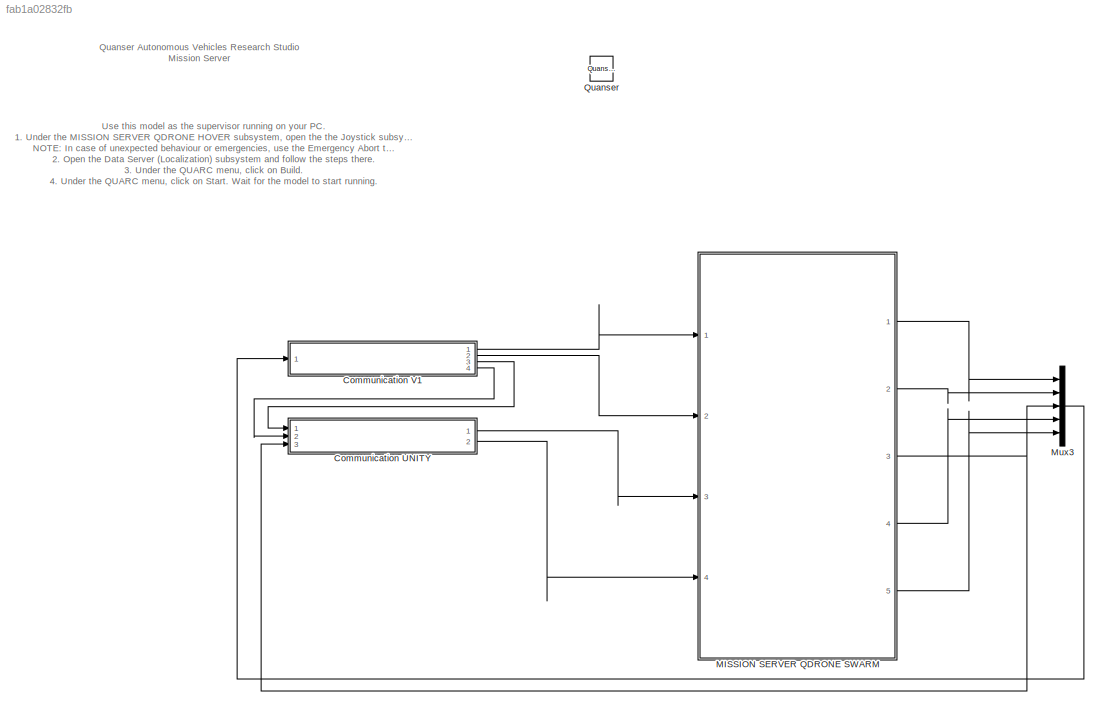
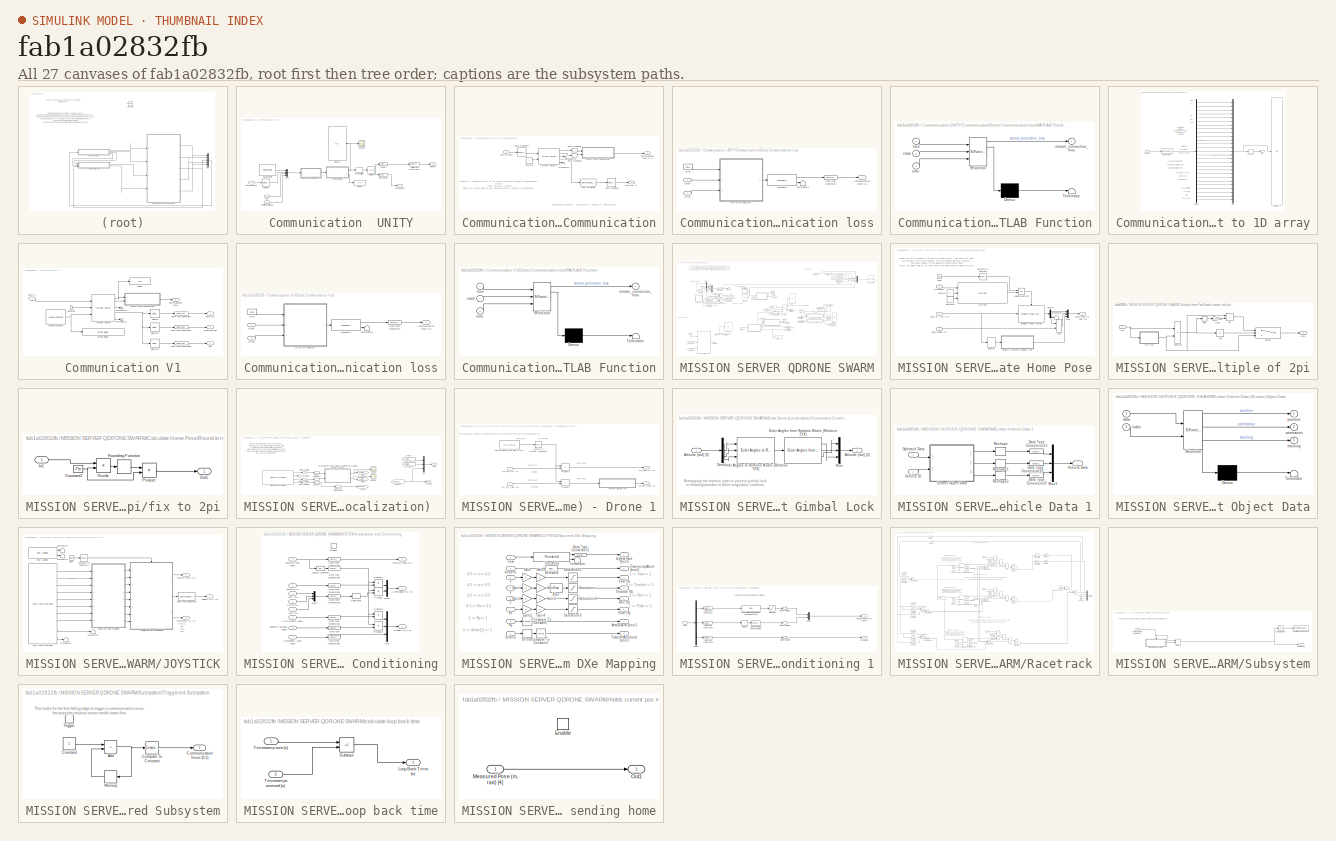
[diagram: thumbnail index - all 27 canvases of the model, root first then tree order]
MODEL slx_fab1a02832fb
KIND model
CONFIG AbsTol = auto
CONFIG EnableMultiTasking = on
CONFIG FixedStep = 0.001
CONFIG MaxStep = auto
CONFIG MinStep = auto
CONFIG RelTol = 1e-3
CONFIG SampleTimeConstraint = Unconstrained
CONFIG SolverName = ode2
CONFIG StartTime = 0.0
CONFIG StopTime = inf
BLOCK [SubSystem] Communication  UNITY
  Ports = [3, 2]
  RequestExecContextInheritance = off
BLOCK [SubSystem] Communication  UNITY/Communication
  Ports = [1, 2]
  RequestExecContextInheritance = off
BLOCK [DataTypeConversion] Communication  UNITY/Communication/Cast To Double
  OutDataTypeStr = double
  RndMeth = Floor
  SaturateOnIntegerOverflow = off
BLOCK [Outport] Communication  UNITY/Communication/Communication Issue (0,1)
  Port = 2
  VectorParamsAs1DForOutWhenUnconnected = off
BLOCK [Constant] Communication  UNITY/Communication/Constant
BLOCK [Outport] Communication  UNITY/Communication/Data Out [7]
  VectorParamsAs1DForOutWhenUnconnected = off
BLOCK [Inport] Communication  UNITY/Communication/Data to Send 
BLOCK [SubSystem] Communication  UNITY/Communication/Detect Communication loss
  Ports = [2, 1]
  RequestExecContextInheritance = off
BLOCK [Outport] Communication  UNITY/Communication/Detect Communication loss/Communication Issue (0,1)
  VectorParamsAs1DForOutWhenUnconnected = off
BLOCK [DataTypeConversion] Communication  UNITY/Communication/Detect Communication loss/Data Type Conversion
  RndMeth = Floor
  SaturateOnIntegerOverflow = off
BLOCK [Inport] Communication  UNITY/Communication/Detect Communication loss/Error
  NameLocation = top
  Port = 2
BLOCK [SubSystem] Communication  UNITY/Communication/Detect Communication loss/MATLAB Function
  ErrorFcn = Stateflow.Translate.translate
  PermitHierarchicalResolution = ExplicitOnly
  Ports = [3, 1]
  RequestExecContextInheritance = off
  SFBlockType = MATLAB Function
  TreatAsAtomicUnit = on
BLOCK [Demux] Communication  UNITY/Communication/Detect Communication loss/MATLAB Function/ Demux 
  Outputs = 1
  Ports = [1, 1]
BLOCK [S-Function] Communication  UNITY/Communication/Detect Communication loss/MATLAB Function/ SFunction 
  EnableBusSupport = on
  FunctionName = sf_sfun
  PortCounts = [3 2]
  Ports = [3, 2]
  SFcnIsStateOwnerBlock = off
  SFunctionDeploymentMode = off
  Tag = Stateflow S-Function 12
BLOCK [Terminator] Communication  UNITY/Communication/Detect Communication loss/MATLAB Function/ Terminator 
BLOCK [Inport] Communication  UNITY/Communication/Detect Communication loss/MATLAB Function/error
  Port = 3
BLOCK [Inport] Communication  UNITY/Communication/Detect Communication loss/MATLAB Function/state
  Port = 2
BLOCK [Outport] Communication  UNITY/Communication/Detect Communication loss/MATLAB Function/stream_connection_loss
  VectorParamsAs1DForOutWhenUnconnected = off
BLOCK [Inport] Communication  UNITY/Communication/Detect Communication loss/MATLAB Function/time
BLOCK [Inport] Communication  UNITY/Communication/Detect Communication loss/State
  NameLocation = top
BLOCK [Terminator] Communication  UNITY/Communication/Detect Communication loss/Terminator2
BLOCK [Reference] Communication  UNITY/Communication/Detect Communication loss/Threshold  REF=quarc_library/Discontinuities/Threshold
  Ports = [1, 2]
  SourceBlock = quarc_library/Discontinuities/Threshold
  SourceProductName = QUARC Targets
  SourceType = Threshold
BLOCK [Reference] Communication  UNITY/Communication/Detect Communication loss/Time  REF=quarc_library/Sources/Time/Time
  NameLocation = top
  Ports = [0, 1]
  SourceBlock = quarc_library/Sources/Time/Time
  SourceProductName = QUARC Targets
  SourceType = Time
BLOCK [RateTransition] Communication  UNITY/Communication/Rate Transition
BLOCK [RateTransition] Communication  UNITY/Communication/Rate Transition1
BLOCK [RateTransition] Communication  UNITY/Communication/Rate Transition2
BLOCK [RateTransition] Communication  UNITY/Communication/Rate Transition3
BLOCK [Reference] Communication  UNITY/Communication/Stream Server1  REF=quarc_library/Communications/Basic/Stream Server
  AttributesFormatString = "tcpip://localhost:18000?nagle='off'"
  Ports = [2, 5]
  SourceBlock = quarc_library/Communications/Basic/Stream Server
  SourceProductName = QUARC Targets
  SourceType = Stream Server
BLOCK [Terminator] Communication  UNITY/Communication/Terminator1
BLOCK [Terminator] Communication  UNITY/Communication/Terminator2
BLOCK [DataTypeConversion] Communication  UNITY/Data Type Conversion1
  RndMeth = Floor
  SaturateOnIntegerOverflow = off
BLOCK [Outport] Communication  UNITY/DesiredPos
BLOCK [Selector] Communication  UNITY/DesiredPos 
  IndexOptions = Index vector (dialog)
  Indices = [4:7]
  InputPortWidth = 7
  OutputSizes = 1
  Ports = [1, 1]
BLOCK [Display] Communication  UNITY/Display
  Decimation = 1
  Ports = [1]
BLOCK [Display] Communication  UNITY/Display1
  Decimation = 1
  Ports = [1]
BLOCK [Reference] Communication  UNITY/Elapsed Time  REF=quarc_library/Advanced/Timing/Elapsed Time
  Ports = [0, 1]
  SourceBlock = quarc_library/Advanced/Timing/Elapsed Time
  SourceProductName = QUARC Targets
  SourceType = Elapsed Time
BLOCK [Inport] Communication  UNITY/MeasuredPos
  Port = 3
BLOCK [Inport] Communication  UNITY/Monitoring Signals
BLOCK [Mux] Communication  UNITY/Mux2
  DisplayOption = bar
  Ports = [4, 1]
BLOCK [SubSystem] Communication  UNITY/Order and convert to 1D array
  Ports = [1, 1]
  RequestExecContextInheritance = off
BLOCK [Outport] Communication  UNITY/Order and convert to 1D array/Array 
BLOCK [DataTypeConversion] Communication  UNITY/Order and convert to 1D array/Cast To Single
  OutDataTypeStr = single
  RndMeth = Floor
  SaturateOnIntegerOverflow = off
BLOCK [Demux] Communication  UNITY/Order and convert to 1D array/Demux
  Outputs = 27
  Ports = [1, 27]
BLOCK [Display] Communication  UNITY/Order and convert to 1D array/Display
  Decimation = 1
  Ports = [1]
BLOCK [Inport] Communication  UNITY/Order and convert to 1D array/Doubles
BLOCK [Mux] Communication  UNITY/Order and convert to 1D array/Mux
  DisplayOption = bar
  Inputs = 27
  NameLocation = right
  Ports = [27, 1]
BLOCK [Reshape] Communication  UNITY/Order and convert to 1D array/Reshape
  Commented = through
  Ports = [1, 1]
BLOCK [Scope] Communication  UNITY/Scope3
  Floating = off
  NumInputPorts = 1
  Ports = [1]
  ScopeSpecificationString = Simulink.scopes.TimeScopeBlockCfg('CurrentConfiguration', extmgr.ConfigurationSet(extmgr.Configuration('Core','General UI',true),extmgr.Configuration('Core','Source UI',true),extmgr.Configuration('Sources','WiredSimulink',true,'DataLoggingVariableName','ScopeData2'),extmgr.Configuration('Visuals','Time Domain',true,'SerializedDisplays',{struct('MinYLimReal','-13.66469','MaxYLimReal','91.61224','YL...<+1647ch>
BLOCK [Selector] Communication  UNITY/Selector
  IndexOptions = Index vector (dialog)
  Indices = [1:3]
  InputPortWidth = 4
  OutputSizes = 1
  Ports = [1, 1]
BLOCK [Selector] Communication  UNITY/Triggers
  IndexOptions = Index vector (dialog)
  Indices = [1:3]
  InputPortWidth = 7
  OutputSizes = 1
  Ports = [1, 1]
BLOCK [UnitDelay] Communication  UNITY/Unit Delay
  HasFrameUpgradeWarning = on
  InitialCondition = zeros(1,7)
  SampleTime = -1
BLOCK [Inport] Communication  UNITY/pqr
  Port = 2
BLOCK [Selector] Communication  UNITY/throw out time
  IndexOptions = Index vector (dialog)
  Indices = [2:8]
  InputPortWidth = 8
  OutputSizes = 1
  Ports = [1, 1]
BLOCK [Outport] Communication  UNITY/triggers
  Port = 2
BLOCK [SubSystem] Communication V1
  Ports = [1, 4]
  RequestExecContextInheritance = off
BLOCK [Outport] Communication V1/Communication Issue
  VectorParamsAs1DForOutWhenUnconnected = off
BLOCK [Constant] Communication V1/Constant
BLOCK [Inport] Communication V1/Data In
BLOCK [Outport] Communication V1/Data Out
  Port = 2
  VectorParamsAs1DForOutWhenUnconnected = off
BLOCK [DataTypeConversion] Communication V1/Data Type Conversion
  RndMeth = Floor
  SaturateOnIntegerOverflow = off
BLOCK [DataTypeConversion] Communication V1/Data Type Conversion1
  RndMeth = Floor
  SaturateOnIntegerOverflow = off
BLOCK [DataTypeConversion] Communication V1/Data Type Conversion2
  RndMeth = Floor
  SaturateOnIntegerOverflow = off
BLOCK [SubSystem] Communication V1/Detect Communication loss
  Ports = [2, 1]
  RequestExecContextInheritance = off
BLOCK [Outport] Communication V1/Detect Communication loss/Communication Issue (0,1)
  VectorParamsAs1DForOutWhenUnconnected = off
BLOCK [DataTypeConversion] Communication V1/Detect Communication loss/Data Type Conversion
  RndMeth = Floor
  SaturateOnIntegerOverflow = off
BLOCK [Inport] Communication V1/Detect Communication loss/Error
  NameLocation = top
  Port = 2
BLOCK [SubSystem] Communication V1/Detect Communication loss/MATLAB Function
  ErrorFcn = Stateflow.Translate.translate
  PermitHierarchicalResolution = ExplicitOnly
  Ports = [3, 1]
  RequestExecContextInheritance = off
  SFBlockType = MATLAB Function
  TreatAsAtomicUnit = on
BLOCK [Demux] Communication V1/Detect Communication loss/MATLAB Function/ Demux 
  Outputs = 1
  Ports = [1, 1]
BLOCK [S-Function] Communication V1/Detect Communication loss/MATLAB Function/ SFunction 
  EnableBusSupport = on
  FunctionName = sf_sfun
  PortCounts = [3 2]
  Ports = [3, 2]
  SFcnIsStateOwnerBlock = off
  SFunctionDeploymentMode = off
  Tag = Stateflow S-Function 6
BLOCK [Terminator] Communication V1/Detect Communication loss/MATLAB Function/ Terminator 
BLOCK [Inport] Communication V1/Detect Communication loss/MATLAB Function/error
  Port = 3
BLOCK [Inport] Communication V1/Detect Communication loss/MATLAB Function/state
  Port = 2
BLOCK [Outport] Communication V1/Detect Communication loss/MATLAB Function/stream_connection_loss
  VectorParamsAs1DForOutWhenUnconnected = off
BLOCK [Inport] Communication V1/Detect Communication loss/MATLAB Function/time
BLOCK [Inport] Communication V1/Detect Communication loss/State
  NameLocation = top
BLOCK [Terminator] Communication V1/Detect Communication loss/Terminator2
BLOCK [Reference] Communication V1/Detect Communication loss/Threshold  REF=quarc_library/Discontinuities/Threshold
  Ports = [1, 2]
  SourceBlock = quarc_library/Discontinuities/Threshold
  SourceProductName = QUARC Targets
  SourceType = Threshold
BLOCK [Reference] Communication V1/Detect Communication loss/Time  REF=quarc_library/Sources/Time/Time
  NameLocation = top
  Ports = [0, 1]
  SourceBlock = quarc_library/Sources/Time/Time
  SourceProductName = QUARC Targets
  SourceType = Time
BLOCK [Display] Communication V1/Display
  Decimation = 1
  Ports = [1]
BLOCK [Reference] Communication V1/Model Argument  REF=quarc_library/Sources/Signals/Model Argument
  AttributesFormatString = (-%<argument_name>)
  Ports = [0, 1]
  SourceBlock = quarc_library/Sources/Signals/Model Argument
  SourceProductName = QUARC Targets
  SourceType = Model Argument
BLOCK [Selector] Communication V1/Selector
  IndexOptions = Index vector (dialog)
  Indices = [1]
  InputPortWidth = 24
  OutputSizes = 1
  Ports = [1, 1]
BLOCK [Selector] Communication V1/Selector1
  IndexOptions = Index vector (dialog)
  Indices = [2:21]
  InputPortWidth = 24
  OutputSizes = 1
  Ports = [1, 1]
BLOCK [Selector] Communication V1/Selector2
  IndexOptions = Index vector (dialog)
  Indices = [22:24]
  InputPortWidth = 24
  OutputSizes = 1
  Ports = [1, 1]
BLOCK [Reference] Communication V1/Stream Server  REF=quarc_library/Communications/Basic/Stream Server
  Ports = [3, 5]
  SourceBlock = quarc_library/Communications/Basic/Stream Server
  SourceProductName = QUARC Targets
  SourceType = Stream Server
BLOCK [Reference] Communication V1/String Display   REF=quarc_library/Strings/String Display
  Ports = [1]
  SourceBlock = quarc_library/Strings/String Display
  SourceProductName = QUARC Targets
  SourceType = String Display
BLOCK [Terminator] Communication V1/Terminator1
BLOCK [Terminator] Communication V1/Terminator2
BLOCK [Outport] Communication V1/monitoring sigs
  Port = 3
BLOCK [Outport] Communication V1/pqr
  Port = 4
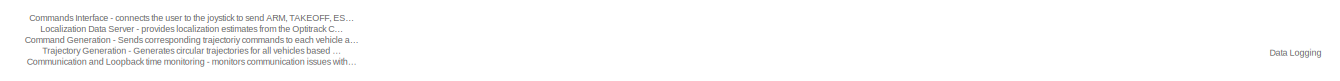
[diagram: MISSION SERVER QDRONE SWARM - part 1/3, top center region]
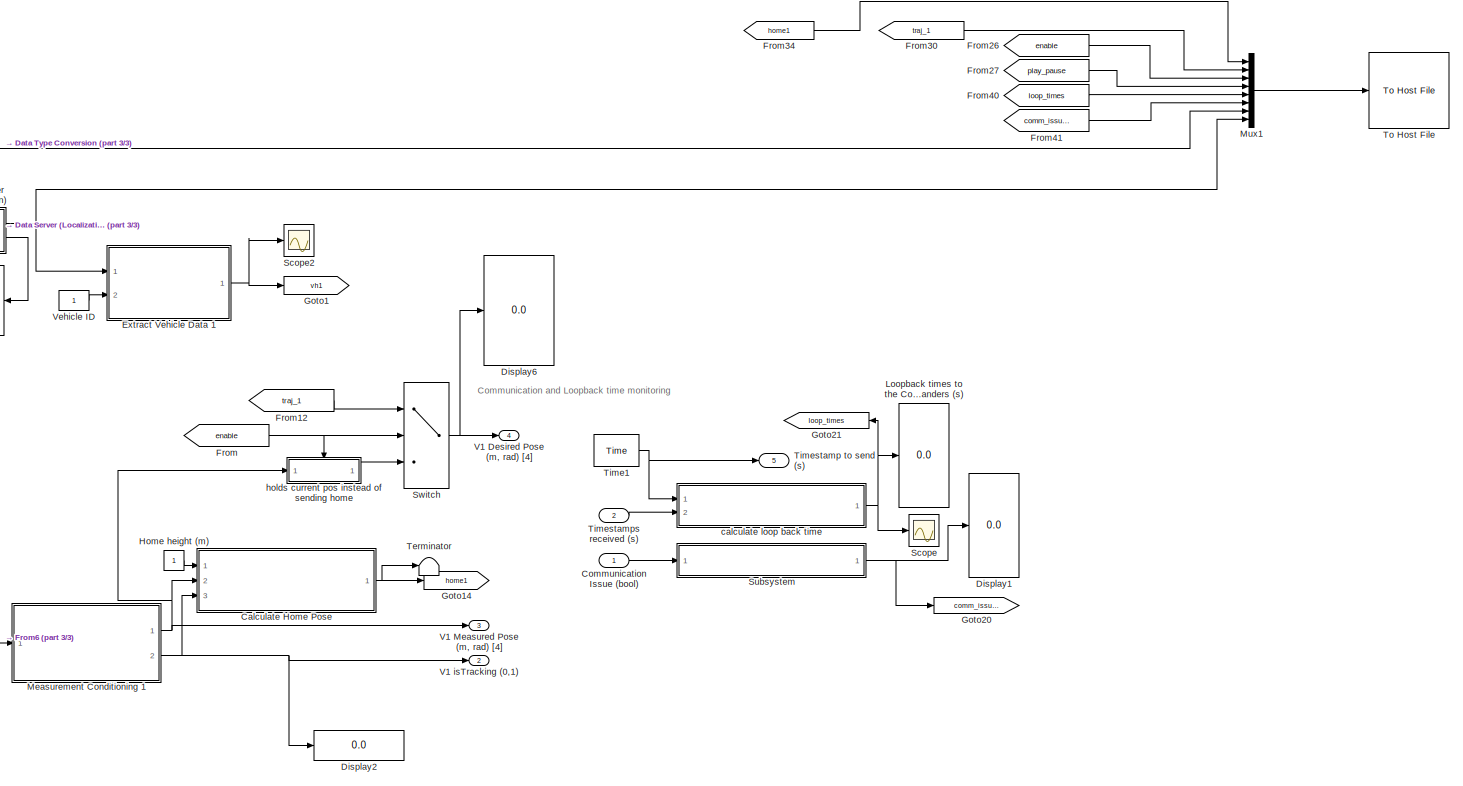
[diagram: MISSION SERVER QDRONE SWARM - part 2/3, right side, full height]
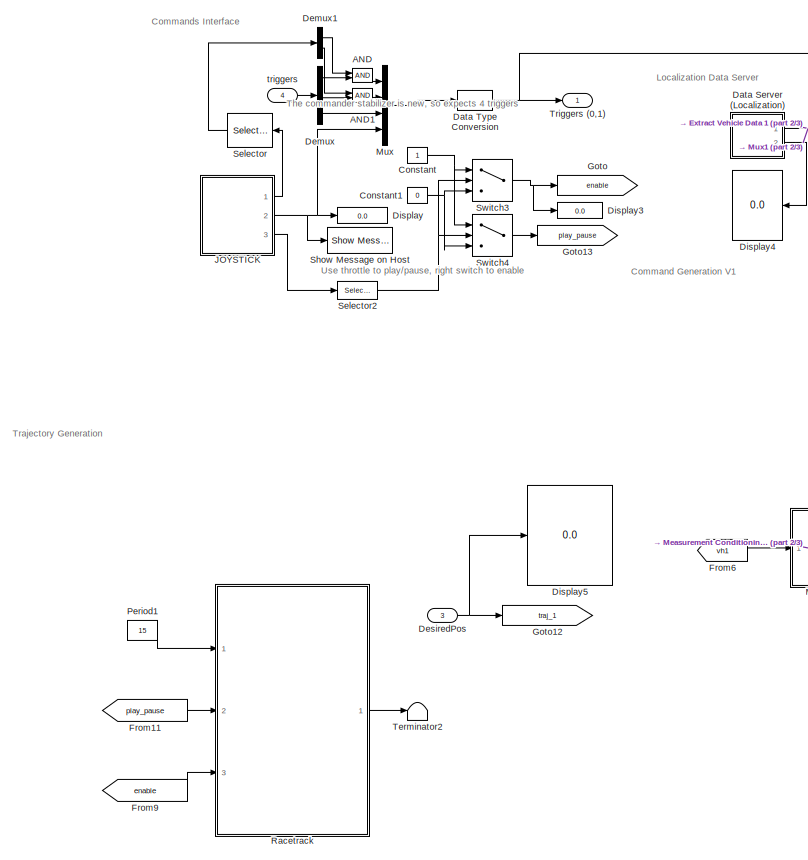
[diagram: MISSION SERVER QDRONE SWARM - part 3/3, left side, full height]
BLOCK [SubSystem] MISSION SERVER QDRONE SWARM
  Ports = [4, 5]
  RequestExecContextInheritance = off
BLOCK [Logic] MISSION SERVER QDRONE SWARM/AND
  AllPortsSameDT = off
  IconShape = distinctive
  OutDataTypeStr = boolean
  Ports = [2, 1]
BLOCK [Logic] MISSION SERVER QDRONE SWARM/AND1
  AllPortsSameDT = off
  IconShape = distinctive
  OutDataTypeStr = boolean
  Ports = [2, 1]
BLOCK [SubSystem] MISSION SERVER QDRONE SWARM/Calculate Home Pose
  NameLocation = top
  Ports = [3, 1]
  RequestExecContextInheritance = off
BLOCK [Clock] MISSION SERVER QDRONE SWARM/Calculate Home Pose/Clock
BLOCK [Reference] MISSION SERVER QDRONE SWARM/Calculate Home Pose/Compare To Constant  REF=simulink/Logic and Bit
Operations/Compare
To Constant
  Ports = [1, 1]
  SourceBlock = simulink/Logic and Bit\nOperations/Compare\nTo Constant
  SourceProductBaseCode = SL
  SourceType = Compare To Constant
BLOCK [Constant] MISSION SERVER QDRONE SWARM/Calculate Home Pose/Constant
  Value = 0
BLOCK [Constant] MISSION SERVER QDRONE SWARM/Calculate Home Pose/Constant1
BLOCK [Demux] MISSION SERVER QDRONE SWARM/Calculate Home Pose/Demux
  Ports = [1, 4]
BLOCK [Reference] MISSION SERVER QDRONE SWARM/Calculate Home Pose/Enabled Moving Average  REF=quarc_library/Discrete/Enabled Moving Average
  Ports = [1, 1, 1]
  SourceBlock = quarc_library/Discrete/Enabled Moving Average
  SourceProductName = QUARC Targets
  SourceType = Enabled Moving Average
BLOCK [Outport] MISSION SERVER QDRONE SWARM/Calculate Home Pose/Home Pose (m, rad) [4]
  VectorParamsAs1DForOutWhenUnconnected = off
BLOCK [Inport] MISSION SERVER QDRONE SWARM/Calculate Home Pose/Home height (m)
BLOCK [Logic] MISSION SERVER QDRONE SWARM/Calculate Home Pose/Logical Operator
  AllPortsSameDT = off
  OutDataTypeStr = boolean
  Ports = [2, 1]
BLOCK [Mux] MISSION SERVER QDRONE SWARM/Calculate Home Pose/Mux
  DisplayOption = bar
  Ports = [4, 1]
BLOCK [Reference] MISSION SERVER QDRONE SWARM/Calculate Home Pose/One Shot  REF=quarc_library/Discontinuities/One Shot
  Ports = [3, 1]
  SourceBlock = quarc_library/Discontinuities/One Shot
  SourceProductName = QUARC Targets
  SourceType = One Shot
BLOCK [Inport] MISSION SERVER QDRONE SWARM/Calculate Home Pose/Pose (m, rad ) [4]
  Port = 2
BLOCK [SubSystem] MISSION SERVER QDRONE SWARM/Calculate Home Pose/Round to nearest multiple of 2pi
  Ports = [1, 1]
  RequestExecContextInheritance = off
BLOCK [Abs] MISSION SERVER QDRONE SWARM/Calculate Home Pose/Round to nearest multiple of 2pi/Abs
  SaturateOnIntegerOverflow = off
BLOCK [Sum] MISSION SERVER QDRONE SWARM/Calculate Home Pose/Round to nearest multiple of 2pi/Add
  IconShape = rectangular
  Ports = [2, 1]
BLOCK [Gain] MISSION SERVER QDRONE SWARM/Calculate Home Pose/Round to nearest multiple of 2pi/Gain
  Gain = 2*pi
BLOCK [Inport] MISSION SERVER QDRONE SWARM/Calculate Home Pose/Round to nearest multiple of 2pi/In1
BLOCK [Outport] MISSION SERVER QDRONE SWARM/Calculate Home Pose/Round to nearest multiple of 2pi/Out1
  VectorParamsAs1DForOutWhenUnconnected = off
BLOCK [Signum] MISSION SERVER QDRONE SWARM/Calculate Home Pose/Round to nearest multiple of 2pi/Sign
BLOCK [Sum] MISSION SERVER QDRONE SWARM/Calculate Home Pose/Round to nearest multiple of 2pi/Subtract
  IconShape = rectangular
  Inputs = +-
  Ports = [2, 1]
BLOCK [Switch] MISSION SERVER QDRONE SWARM/Calculate Home Pose/Round to nearest multiple of 2pi/Switch
  Criteria = u2 > Threshold
  InputSameDT = off
  SaturateOnIntegerOverflow = off
  Threshold = pi
BLOCK [SubSystem] MISSION SERVER QDRONE SWARM/Calculate Home Pose/Round to nearest multiple of 2pi/fix to 2pi
  Ports = [1, 1]
  RequestExecContextInheritance = off
BLOCK [Constant] MISSION SERVER QDRONE SWARM/Calculate Home Pose/Round to nearest multiple of 2pi/fix to 2pi/Constant2
  Value = 2*pi
BLOCK [Product] MISSION SERVER QDRONE SWARM/Calculate Home Pose/Round to nearest multiple of 2pi/fix to 2pi/Divide
  Inputs = */
  Ports = [2, 1]
BLOCK [Inport] MISSION SERVER QDRONE SWARM/Calculate Home Pose/Round to nearest multiple of 2pi/fix to 2pi/In1
BLOCK [Outport] MISSION SERVER QDRONE SWARM/Calculate Home Pose/Round to nearest multiple of 2pi/fix to 2pi/Out1
  VectorParamsAs1DForOutWhenUnconnected = off
BLOCK [Product] MISSION SERVER QDRONE SWARM/Calculate Home Pose/Round to nearest multiple of 2pi/fix to 2pi/Product
  Ports = [2, 1]
BLOCK [Rounding] MISSION SERVER QDRONE SWARM/Calculate Home Pose/Round to nearest multiple of 2pi/fix to 2pi/Rounding Function
  Operator = fix
BLOCK [Selector] MISSION SERVER QDRONE SWARM/Calculate Home Pose/Selector
  IndexOptions = Index vector (dialog)
  Indices = [4]
  InputPortWidth = 4
  OutputSizes = 1
  Ports = [1, 1]
BLOCK [Sum] MISSION SERVER QDRONE SWARM/Calculate Home Pose/Sum
  IconShape = rectangular
  Ports = [2, 1]
BLOCK [Terminator] MISSION SERVER QDRONE SWARM/Calculate Home Pose/Terminator
BLOCK [Inport] MISSION SERVER QDRONE SWARM/Calculate Home Pose/isTracking?
  Port = 3
BLOCK [Inport] MISSION SERVER QDRONE SWARM/Communication Issue (bool) 
BLOCK [Constant] MISSION SERVER QDRONE SWARM/Constant
BLOCK [Constant] MISSION SERVER QDRONE SWARM/Constant1
  Value = 0
BLOCK [SubSystem] MISSION SERVER QDRONE SWARM/Data Server (Localization) 
  NameLocation = top
  Ports = [0, 2]
  RequestExecContextInheritance = off
BLOCK [SubSystem] MISSION SERVER QDRONE SWARM/Data Server (Localization) /Convention Correction (Motive Frame to Research Studio Frame) - Drone 1
  NameLocation = top
  Ports = [2, 2]
  RequestExecContextInheritance = off
BLOCK [Math] MISSION SERVER QDRONE SWARM/Data Server (Localization) /Convention Correction (Motive Frame to Research Studio Frame) - Drone 1/Inverse of Orthonormal Matrix is its Transpose
  Operator = transpose
  Ports = [1, 1]
  SignedPower = on
BLOCK [SubSystem] MISSION SERVER QDRONE SWARM/Data Server (Localization) /Convention Correction (Motive Frame to Research Studio Frame) - Drone 1/Prevent Gimbal Lock
  Ports = [1, 1]
  RequestExecContextInheritance = off
BLOCK [Inport] MISSION SERVER QDRONE SWARM/Data Server (Localization) /Convention Correction (Motive Frame to Research Studio Frame) - Drone 1/Prevent Gimbal Lock/Attitude (rad) [3]
BLOCK [Outport] MISSION SERVER QDRONE SWARM/Data Server (Localization) /Convention Correction (Motive Frame to Research Studio Frame) - Drone 1/Prevent Gimbal Lock/Attitude (rad) [3] 
  VectorParamsAs1DForOutWhenUnconnected = off
BLOCK [Demux] MISSION SERVER QDRONE SWARM/Data Server (Localization) /Convention Correction (Motive Frame to Research Studio Frame) - Drone 1/Prevent Gimbal Lock/Demux
  Outputs = 3
  Ports = [1, 3]
BLOCK [Reference] MISSION SERVER QDRONE SWARM/Data Server (Localization) /Convention Correction (Motive Frame to Research Studio Frame) - Drone 1/Prevent Gimbal Lock/Euler Angles from Rotation Matrix (Relative ZYX)  REF=quarc_library/Math Operations/Matrices/Euler Angles from
Rotation Matrix
  Ports = [1, 3]
  SourceBlock = quarc_library/Math Operations/Matrices/Euler Angles from\nRotation Matrix
  SourceProductName = QUARC Targets
  SourceType = Euler Angles from Rotation Matrix
BLOCK [Reference] MISSION SERVER QDRONE SWARM/Data Server (Localization) /Convention Correction (Motive Frame to Research Studio Frame) - Drone 1/Prevent Gimbal Lock/Euler Angles to Rotation Matrix (Relative YZX)  REF=quarc_library/Math Operations/Matrices/Euler Angles to
Rotation Matrix
  Ports = [3, 1]
  SourceBlock = quarc_library/Math Operations/Matrices/Euler Angles to\nRotation Matrix
  SourceProductName = QUARC Targets
  SourceType = Euler Angles to Rotation Matrix
BLOCK [Mux] MISSION SERVER QDRONE SWARM/Data Server (Localization) /Convention Correction (Motive Frame to Research Studio Frame) - Drone 1/Prevent Gimbal Lock/Mux
  DisplayOption = bar
  Inputs = 3
  Ports = [3, 1]
BLOCK [Product] MISSION SERVER QDRONE SWARM/Data Server (Localization) /Convention Correction (Motive Frame to Research Studio Frame) - Drone 1/Product
  Multiplication = Matrix(*)
  Ports = [2, 1]
BLOCK [Product] MISSION SERVER QDRONE SWARM/Data Server (Localization) /Convention Correction (Motive Frame to Research Studio Frame) - Drone 1/Product1
  Multiplication = Matrix(*)
  Ports = [2, 1]
BLOCK [Constant] MISSION SERVER QDRONE SWARM/Data Server (Localization) /Convention Correction (Motive Frame to Research Studio Frame) - Drone 1/Rotate Basis from RSF to MF
  Value = [0 -1 0;0 0 1;-1 0 0]
BLOCK [Inport] MISSION SERVER QDRONE SWARM/Data Server (Localization) /Convention Correction (Motive Frame to Research Studio Frame) - Drone 1/rot_MF (rad) [3]
  Port = 2
BLOCK [Outport] MISSION SERVER QDRONE SWARM/Data Server (Localization) /Convention Correction (Motive Frame to Research Studio Frame) - Drone 1/rot_RSF (rad) [3]
  Port = 2
  VectorParamsAs1DForOutWhenUnconnected = off
BLOCK [Inport] MISSION SERVER QDRONE SWARM/Data Server (Localization) /Convention Correction (Motive Frame to Research Studio Frame) - Drone 1/xyz_MF (m) [3]
BLOCK [Outport] MISSION SERVER QDRONE SWARM/Data Server (Localization) /Convention Correction (Motive Frame to Research Studio Frame) - Drone 1/xyz_RSF (m) [3]
  VectorParamsAs1DForOutWhenUnconnected = off
BLOCK [Outport] MISSION SERVER QDRONE SWARM/Data Server (Localization) /Data
  VectorParamsAs1DForOutWhenUnconnected = off
BLOCK [DataTypeConversion] MISSION SERVER QDRONE SWARM/Data Server (Localization) /Data Type Conversion
  RndMeth = Floor
  SaturateOnIntegerOverflow = off
BLOCK [From] MISSION SERVER QDRONE SWARM/Data Server (Localization) /From1
  GotoTag = Rotation_V1
BLOCK [From] MISSION SERVER QDRONE SWARM/Data Server (Localization) /From19
  GotoTag = Tracking_V1
BLOCK [From] MISSION SERVER QDRONE SWARM/Data Server (Localization) /From6
  GotoTag = Position_V1
BLOCK [Goto] MISSION SERVER QDRONE SWARM/Data Server (Localization) /Goto1
  GotoTag = Position_V1
BLOCK [Goto] MISSION SERVER QDRONE SWARM/Data Server (Localization) /Goto19
  GotoTag = Tracking_V1
BLOCK [Goto] MISSION SERVER QDRONE SWARM/Data Server (Localization) /Goto2
  GotoTag = Rotation_V1
BLOCK [Mux] MISSION SERVER QDRONE SWARM/Data Server (Localization) /Mux
  DisplayOption = bar
  Inputs = 3
  Ports = [3, 1]
BLOCK [Reference] MISSION SERVER QDRONE SWARM/Data Server (Localization) /OptiTrack Trackables  REF=quarc_library/Devices/Third-Party/NaturalPoint/OptiTrack/OptiTrack Trackables
  Ports = [0, 4]
  SourceBlock = quarc_library/Devices/Third-Party/NaturalPoint/OptiTrack/OptiTrack Trackables
  SourceProductName = QUARC Targets
  SourceType = OptiTrack Rigid Body Position
BLOCK [RateTransition] MISSION SERVER QDRONE SWARM/Data Server (Localization) /Rate Transition
BLOCK [RateTransition] MISSION SERVER QDRONE SWARM/Data Server (Localization) /Rate Transition2
BLOCK [RateTransition] MISSION SERVER QDRONE SWARM/Data Server (Localization) /Rate Transition3
BLOCK [Scope] MISSION SERVER QDRONE SWARM/Data Server (Localization) /Scope
  Floating = off
  NumInputPorts = 1
  Ports = [1]
  ScopeSpecificationString = Simulink.scopes.TimeScopeBlockCfg('CurrentConfiguration', extmgr.ConfigurationSet(extmgr.Configuration('Core','General UI',true),extmgr.Configuration('Core','Source UI',true),extmgr.Configuration('Sources','WiredSimulink',true,'DataLoggingVariableName','ScopeData1'),extmgr.Configuration('Visuals','Time Domain',true,'SerializedDisplays',{struct('MinYLimReal','-0.08193','MaxYLimReal','0.19129','YLab...<+1644ch>
BLOCK [Scope] MISSION SERVER QDRONE SWARM/Data Server (Localization) /Scope1
  Floating = off
  NumInputPorts = 1
  Ports = [1]
  ScopeSpecificationString = Simulink.scopes.TimeScopeBlockCfg('CurrentConfiguration', extmgr.ConfigurationSet(extmgr.Configuration('Core','General UI',true),extmgr.Configuration('Core','Source UI',true),extmgr.Configuration('Sources','WiredSimulink',true,'DataLoggingVariableName','ScopeData2'),extmgr.Configuration('Visuals','Time Domain',true,'SerializedDisplays',{struct('MinYLimReal','-0.83418','MaxYLimReal','3.14431','YLab...<+1617ch>
BLOCK [Selector] MISSION SERVER QDRONE SWARM/Data Server (Localization) /Selector
  IndexOptions = Index vector (dialog)
  Indices = [1:3]
  InputPortWidth = 3
  OutputSizes = 1
  Ports = [1, 1]
BLOCK [Selector] MISSION SERVER QDRONE SWARM/Data Server (Localization) /Selector1
  IndexOptions = Index vector (dialog)
  Indices = [1:3]
  InputPortWidth = 3
  OutputSizes = 1
  Ports = [1, 1]
BLOCK [Selector] MISSION SERVER QDRONE SWARM/Data Server (Localization) /Selector4
  IndexOptions = Index vector (dialog)
  Indices = [1]
  InputPortWidth = 1
  OutputSizes = 1
  Ports = [1, 1]
BLOCK [Terminator] MISSION SERVER QDRONE SWARM/Data Server (Localization) /Terminator
BLOCK [Outport] MISSION SERVER QDRONE SWARM/Data Server (Localization) /Tracking
  Port = 2
  VectorParamsAs1DForOutWhenUnconnected = off
BLOCK [DataTypeConversion] MISSION SERVER QDRONE SWARM/Data Type Conversion
  RndMeth = Floor
  SaturateOnIntegerOverflow = off
BLOCK [Demux] MISSION SERVER QDRONE SWARM/Demux
  Outputs = 3
  Ports = [1, 3]
BLOCK [Demux] MISSION SERVER QDRONE SWARM/Demux1
  Outputs = 2
  Ports = [1, 2]
BLOCK [Inport] MISSION SERVER QDRONE SWARM/DesiredPos
  Port = 3
BLOCK [Display] MISSION SERVER QDRONE SWARM/Display
  Decimation = 1
  Ports = [1]
BLOCK [Display] MISSION SERVER QDRONE SWARM/Display1
  Decimation = 1
  Ports = [1]
BLOCK [Display] MISSION SERVER QDRONE SWARM/Display2
  Decimation = 1
  Ports = [1]
BLOCK [Display] MISSION SERVER QDRONE SWARM/Display3
  Decimation = 1
  Ports = [1]
BLOCK [Display] MISSION SERVER QDRONE SWARM/Display4
  Decimation = 1
  Ports = [1]
BLOCK [Display] MISSION SERVER QDRONE SWARM/Display5
  Decimation = 1
  Ports = [1]
BLOCK [Display] MISSION SERVER QDRONE SWARM/Display6
  Decimation = 1
  Ports = [1]
BLOCK [SubSystem] MISSION SERVER QDRONE SWARM/Extract Vehicle Data 1
  Ports = [2, 1]
  RequestExecContextInheritance = off
BLOCK [DataTypeConversion] MISSION SERVER QDRONE SWARM/Extract Vehicle Data 1/Data Type Conversion10
  RndMeth = Floor
  SaturateOnIntegerOverflow = off
BLOCK [DataTypeConversion] MISSION SERVER QDRONE SWARM/Extract Vehicle Data 1/Data Type Conversion11
  RndMeth = Floor
  SaturateOnIntegerOverflow = off
BLOCK [DataTypeConversion] MISSION SERVER QDRONE SWARM/Extract Vehicle Data 1/Data Type Conversion9
  RndMeth = Floor
  SaturateOnIntegerOverflow = off
BLOCK [SubSystem] MISSION SERVER QDRONE SWARM/Extract Vehicle Data 1/Extract Object Data
  ErrorFcn = Stateflow.Translate.translate
  PermitHierarchicalResolution = ExplicitOnly
  Ports = [2, 3]
  RequestExecContextInheritance = off
  SFBlockType = MATLAB Function
  TreatAsAtomicUnit = on
BLOCK [Demux] MISSION SERVER QDRONE SWARM/Extract Vehicle Data 1/Extract Object Data/ Demux 
  Outputs = 1
  Ports = [1, 1]
BLOCK [S-Function] MISSION SERVER QDRONE SWARM/Extract Vehicle Data 1/Extract Object Data/ SFunction 
  EnableBusSupport = on
  FunctionName = sf_sfun
  PortCounts = [2 4]
  Ports = [2, 4]
  SFcnIsStateOwnerBlock = off
  SFunctionDeploymentMode = off
  Tag = Stateflow S-Function 18
BLOCK [Terminator] MISSION SERVER QDRONE SWARM/Extract Vehicle Data 1/Extract Object Data/ Terminator 
BLOCK [Inport] MISSION SERVER QDRONE SWARM/Extract Vehicle Data 1/Extract Object Data/data
BLOCK [Inport] MISSION SERVER QDRONE SWARM/Extract Vehicle Data 1/Extract Object Data/index
  Port = 2
BLOCK [Outport] MISSION SERVER QDRONE SWARM/Extract Vehicle Data 1/Extract Object Data/orientation
  Port = 2
  VectorParamsAs1DForOutWhenUnconnected = off
BLOCK [Outport] MISSION SERVER QDRONE SWARM/Extract Vehicle Data 1/Extract Object Data/position
  VectorParamsAs1DForOutWhenUnconnected = off
BLOCK [Outport] MISSION SERVER QDRONE SWARM/Extract Vehicle Data 1/Extract Object Data/tracking
  Port = 3
  VectorParamsAs1DForOutWhenUnconnected = off
BLOCK [Mux] MISSION SERVER QDRONE SWARM/Extract Vehicle Data 1/Mux1
  DisplayOption = bar
  Inputs = 3
  Ports = [3, 1]
BLOCK [Inport] MISSION SERVER QDRONE SWARM/Extract Vehicle Data 1/Optitrack Data
BLOCK [Reshape] MISSION SERVER QDRONE SWARM/Extract Vehicle Data 1/Reshape
  Ports = [1, 1]
BLOCK [Reshape] MISSION SERVER QDRONE SWARM/Extract Vehicle Data 1/Reshape1
  Ports = [1, 1]
BLOCK [Reshape] MISSION SERVER QDRONE SWARM/Extract Vehicle Data 1/Reshape2
  Ports = [1, 1]
BLOCK [Outport] MISSION SERVER QDRONE SWARM/Extract Vehicle Data 1/Vehicle Data
  VectorParamsAs1DForOutWhenUnconnected = off
BLOCK [Inport] MISSION SERVER QDRONE SWARM/Extract Vehicle Data 1/Vehicle ID
  Port = 2
BLOCK [From] MISSION SERVER QDRONE SWARM/From
  GotoTag = enable
BLOCK [From] MISSION SERVER QDRONE SWARM/From11
  Commented = on
  GotoTag = play_pause
BLOCK [From] MISSION SERVER QDRONE SWARM/From12
  GotoTag = traj_1
BLOCK [From] MISSION SERVER QDRONE SWARM/From26
  GotoTag = enable
BLOCK [From] MISSION SERVER QDRONE SWARM/From27
  GotoTag = play_pause
BLOCK [From] MISSION SERVER QDRONE SWARM/From30
  GotoTag = traj_1
BLOCK [From] MISSION SERVER QDRONE SWARM/From34
  GotoTag = home1
BLOCK [From] MISSION SERVER QDRONE SWARM/From40
  GotoTag = loop_times
BLOCK [From] MISSION SERVER QDRONE SWARM/From41
  GotoTag = comm_issues
BLOCK [From] MISSION SERVER QDRONE SWARM/From6
  GotoTag = vh1
BLOCK [From] MISSION SERVER QDRONE SWARM/From9
  Commented = on
  GotoTag = enable
BLOCK [Goto] MISSION SERVER QDRONE SWARM/Goto
  GotoTag = enable
BLOCK [Goto] MISSION SERVER QDRONE SWARM/Goto1
  GotoTag = vh1
BLOCK [Goto] MISSION SERVER QDRONE SWARM/Goto12
  GotoTag = traj_1
BLOCK [Goto] MISSION SERVER QDRONE SWARM/Goto13
  GotoTag = play_pause
BLOCK [Goto] MISSION SERVER QDRONE SWARM/Goto14
  GotoTag = home1
BLOCK [Goto] MISSION SERVER QDRONE SWARM/Goto20
  GotoTag = comm_issues
BLOCK [Goto] MISSION SERVER QDRONE SWARM/Goto21
  GotoTag = loop_times
BLOCK [Constant] MISSION SERVER QDRONE SWARM/Home height (m)
BLOCK [SubSystem] MISSION SERVER QDRONE SWARM/JOYSTICK
  Ports = [0, 3]
  RequestExecContextInheritance = off
BLOCK [Clock] MISSION SERVER QDRONE SWARM/JOYSTICK/Clock
BLOCK [Outport] MISSION SERVER QDRONE SWARM/JOYSTICK/Commands (%) [4]
  Port = 3
  VectorParamsAs1DForOutWhenUnconnected = off
BLOCK [Reference] MISSION SERVER QDRONE SWARM/JOYSTICK/Compare To Constant1  REF=simulink/Logic and Bit
Operations/Compare
To Constant
  Ports = [1, 1]
  SourceBlock = simulink/Logic and Bit\nOperations/Compare\nTo Constant
  SourceProductBaseCode = SL
  SourceType = Compare To Constant
BLOCK [DataTypeConversion] MISSION SERVER QDRONE SWARM/JOYSTICK/Data Type Conversion
  OutDataTypeStr = boolean
  RndMeth = Floor
  SaturateOnIntegerOverflow = off
BLOCK [Reference] MISSION SERVER QDRONE SWARM/JOYSTICK/Host Game Controller  REF=quarc_library/Devices/Peripherals/Host/Host Game Controller
  Ports = [0, 10]
  SourceBlock = quarc_library/Devices/Peripherals/Host/Host Game Controller
  SourceProductName = QUARC Targets
  SourceType = Host Game Controller
BLOCK [Reference] MISSION SERVER QDRONE SWARM/JOYSTICK/Host Initialize  REF=quarc_library/Devices/Peripherals/Host/Host Initialize
  Ports = [0, 2]
  SourceBlock = quarc_library/Devices/Peripherals/Host/Host Initialize
  SourceProductName = QUARC Targets
  SourceType = Host Initialize
BLOCK [SubSystem] MISSION SERVER QDRONE SWARM/JOYSTICK/Initialization and Conditioning
  Ports = [8, 3, 1]
  RequestExecContextInheritance = off
  TreatAsAtomicUnit = on
BLOCK [Inport] MISSION SERVER QDRONE SWARM/JOYSTICK/Initialization and Conditioning/Arm//Disarm (bool)
  Port = 7
BLOCK [Outport] MISSION SERVER QDRONE SWARM/JOYSTICK/Initialization and Conditioning/Commands (%) [4]
  InitialOutput = 0
  NameLocation = top
  Port = 3
  VectorParamsAs1DForOutWhenUnconnected = off
BLOCK [DataTypeConversion] MISSION SERVER QDRONE SWARM/JOYSTICK/Initialization and Conditioning/Data Type Conversion1
  RndMeth = Floor
  SaturateOnIntegerOverflow = off
BLOCK [DataTypeConversion] MISSION SERVER QDRONE SWARM/JOYSTICK/Initialization and Conditioning/Data Type Conversion2
  RndMeth = Floor
  SaturateOnIntegerOverflow = off
BLOCK [DataTypeConversion] MISSION SERVER QDRONE SWARM/JOYSTICK/Initialization and Conditioning/Data Type Conversion3
  RndMeth = Floor
  SaturateOnIntegerOverflow = off
BLOCK [DataTypeConversion] MISSION SERVER QDRONE SWARM/JOYSTICK/Initialization and Conditioning/Data Type Conversion4
  RndMeth = Floor
  SaturateOnIntegerOverflow = off
BLOCK [DataTypeConversion] MISSION SERVER QDRONE SWARM/JOYSTICK/Initialization and Conditioning/Data Type Conversion5
  RndMeth = Floor
  SaturateOnIntegerOverflow = off
BLOCK [DataTypeConversion] MISSION SERVER QDRONE SWARM/JOYSTICK/Initialization and Conditioning/Data Type Conversion6
  RndMeth = Floor
  SaturateOnIntegerOverflow = off
BLOCK [DataTypeConversion] MISSION SERVER QDRONE SWARM/JOYSTICK/Initialization and Conditioning/Data Type Conversion7
  RndMeth = Floor
  SaturateOnIntegerOverflow = off
BLOCK [DeadZone] MISSION SERVER QDRONE SWARM/JOYSTICK/Initialization and Conditioning/Dead Zone
  LowerValue = -0.01
  UpperValue = 0.01
BLOCK [Inport] MISSION SERVER QDRONE SWARM/JOYSTICK/Initialization and Conditioning/Emergency Abort (bool)
  Port = 2
BLOCK [EnablePort] MISSION SERVER QDRONE SWARM/JOYSTICK/Initialization and Conditioning/Enable
  Ports = []
  StatesWhenEnabling = reset
BLOCK [Outport] MISSION SERVER QDRONE SWARM/JOYSTICK/Initialization and Conditioning/Joystick Issue (0,1)
  InitialOutput = 0
  NameLocation = top
  VectorParamsAs1DForOutWhenUnconnected = off
BLOCK [Inport] MISSION SERVER QDRONE SWARM/JOYSTICK/Initialization and Conditioning/Joystick Issue (bool)
BLOCK [Logic] MISSION SERVER QDRONE SWARM/JOYSTICK/Initialization and Conditioning/Logical Operator
  AllPortsSameDT = off
  Operator = NOT
  OutDataTypeStr = boolean
  Ports = [1, 1]
BLOCK [Mux] MISSION SERVER QDRONE SWARM/JOYSTICK/Initialization and Conditioning/Mux
  DisplayOption = bar
  Inputs = 3
  Ports = [3, 1]
BLOCK [Mux] MISSION SERVER QDRONE SWARM/JOYSTICK/Initialization and Conditioning/Mux1
  DisplayOption = bar
  Inputs = 3
  Ports = [3, 1]
BLOCK [Mux] MISSION SERVER QDRONE SWARM/JOYSTICK/Initialization and Conditioning/Mux2
  DisplayOption = bar
  Inputs = 2
  Ports = [2, 1]
BLOCK [Inport] MISSION SERVER QDRONE SWARM/JOYSTICK/Initialization and Conditioning/Pitch (%)
  Port = 6
BLOCK [Product] MISSION SERVER QDRONE SWARM/JOYSTICK/Initialization and Conditioning/Product
  Ports = [2, 1]
BLOCK [Product] MISSION SERVER QDRONE SWARM/JOYSTICK/Initialization and Conditioning/Product1
  Ports = [2, 1]
BLOCK [Product] MISSION SERVER QDRONE SWARM/JOYSTICK/Initialization and Conditioning/Product2
  Ports = [2, 1]
BLOCK [Product] MISSION SERVER QDRONE SWARM/JOYSTICK/Initialization and Conditioning/Product3
  Ports = [2, 1]
BLOCK [Inport] MISSION SERVER QDRONE SWARM/JOYSTICK/Initialization and Conditioning/Roll (%)
  Port = 5
BLOCK [Inport] MISSION SERVER QDRONE SWARM/JOYSTICK/Initialization and Conditioning/Takeoff//AutoLand (bool)
  Port = 8
BLOCK [Inport] MISSION SERVER QDRONE SWARM/JOYSTICK/Initialization and Conditioning/Throttle (%)
  Port = 4
BLOCK [Outport] MISSION SERVER QDRONE SWARM/JOYSTICK/Initialization and Conditioning/Triggers (0,1) [3]
  InitialOutput = 0
  NameLocation = top
  Port = 2
  VectorParamsAs1DForOutWhenUnconnected = off
BLOCK [Inport] MISSION SERVER QDRONE SWARM/JOYSTICK/Initialization and Conditioning/Yaw (%)
  Port = 3
BLOCK [Outport] MISSION SERVER QDRONE SWARM/JOYSTICK/Joystick Issue (0,1)
  Port = 2
  VectorParamsAs1DForOutWhenUnconnected = off
BLOCK [SubSystem] MISSION SERVER QDRONE SWARM/JOYSTICK/Spectrum DXe Mapping
  Ports = [8, 8]
  RequestExecContextInheritance = off
BLOCK [Outport] MISSION SERVER QDRONE SWARM/JOYSTICK/Spectrum DXe Mapping/Arm//Disarm (bool) 
  Port = 7
  VectorParamsAs1DForOutWhenUnconnected = off
BLOCK [Bias] MISSION SERVER QDRONE SWARM/JOYSTICK/Spectrum DXe Mapping/Bias
  Bias = 0.5
  SaturateOnIntegerOverflow = off
BLOCK [Reference] MISSION SERVER QDRONE SWARM/JOYSTICK/Spectrum DXe Mapping/Compare To Constant  REF=simulink/Logic and Bit
Operations/Compare
To Constant
  Ports = [1, 1]
  SourceBlock = simulink/Logic and Bit\nOperations/Compare\nTo Constant
  SourceProductBaseCode = SL
  SourceType = Compare To Constant
BLOCK [Reference] MISSION SERVER QDRONE SWARM/JOYSTICK/Spectrum DXe Mapping/Compare To Constant1  REF=simulink/Logic and Bit
Operations/Compare
To Constant
  Ports = [1, 1]
  SourceBlock = simulink/Logic and Bit\nOperations/Compare\nTo Constant
  SourceProductBaseCode = SL
  SourceType = Compare To Constant
BLOCK [DataTypeConversion] MISSION SERVER QDRONE SWARM/JOYSTICK/Spectrum DXe Mapping/Data Type Conversion2
  RndMeth = Floor
  SaturateOnIntegerOverflow = off
BLOCK [Outport] MISSION SERVER QDRONE SWARM/JOYSTICK/Spectrum DXe Mapping/Emergency Abort (bool)
  Port = 2
  VectorParamsAs1DForOutWhenUnconnected = off
BLOCK [Gain] MISSION SERVER QDRONE SWARM/JOYSTICK/Spectrum DXe Mapping/Gain
  Gain = 2
BLOCK [Gain] MISSION SERVER QDRONE SWARM/JOYSTICK/Spectrum DXe Mapping/Gain1
BLOCK [Gain] MISSION SERVER QDRONE SWARM/JOYSTICK/Spectrum DXe Mapping/Gain2
  Gain = 2
BLOCK [Gain] MISSION SERVER QDRONE SWARM/JOYSTICK/Spectrum DXe Mapping/Gain3
  Gain = 2
BLOCK [Gain] MISSION SERVER QDRONE SWARM/JOYSTICK/Spectrum DXe Mapping/Gain4
BLOCK [Gain] MISSION SERVER QDRONE SWARM/JOYSTICK/Spectrum DXe Mapping/Gain5
  Gain = -1
BLOCK [Gain] MISSION SERVER QDRONE SWARM/JOYSTICK/Spectrum DXe Mapping/Gain6
BLOCK [Gain] MISSION SERVER QDRONE SWARM/JOYSTICK/Spectrum DXe Mapping/Gain7
BLOCK [Outport] MISSION SERVER QDRONE SWARM/JOYSTICK/Spectrum DXe Mapping/Joystick Issue (bool)
  VectorParamsAs1DForOutWhenUnconnected = off
BLOCK [Outport] MISSION SERVER QDRONE SWARM/JOYSTICK/Spectrum DXe Mapping/Pitch (%)
  Port = 6
  VectorParamsAs1DForOutWhenUnconnected = off
BLOCK [Outport] MISSION SERVER QDRONE SWARM/JOYSTICK/Spectrum DXe Mapping/Roll (%)
  Port = 5
  VectorParamsAs1DForOutWhenUnconnected = off
BLOCK [Inport] MISSION SERVER QDRONE SWARM/JOYSTICK/Spectrum DXe Mapping/Rx
  Port = 7
BLOCK [Inport] MISSION SERVER QDRONE SWARM/JOYSTICK/Spectrum DXe Mapping/Ry
  Port = 8
BLOCK [Saturate] MISSION SERVER QDRONE SWARM/JOYSTICK/Spectrum DXe Mapping/Saturation
  LowerLimit = 0
  UpperLimit = 1
BLOCK [Saturate] MISSION SERVER QDRONE SWARM/JOYSTICK/Spectrum DXe Mapping/Saturation1
  LowerLimit = -1
  UpperLimit = 1
BLOCK [Saturate] MISSION SERVER QDRONE SWARM/JOYSTICK/Spectrum DXe Mapping/Saturation2
  LowerLimit = -1
  UpperLimit = 1
BLOCK [Saturate] MISSION SERVER QDRONE SWARM/JOYSTICK/Spectrum DXe Mapping/Saturation3
  LowerLimit = -1
  UpperLimit = 1
BLOCK [Selector] MISSION SERVER QDRONE SWARM/JOYSTICK/Spectrum DXe Mapping/Selector
  IndexOptions = Index vector (dialog)
  Indices = [2]
  InputPortWidth = 2
  OutputSizes = 1
  Ports = [1, 1]
BLOCK [Selector] MISSION SERVER QDRONE SWARM/JOYSTICK/Spectrum DXe Mapping/Selector2
  IndexOptions = Index vector (dialog)
  Indices = [1]
  InputPortWidth = 32
  NameLocation = top
  OutputSizes = 1
  Ports = [1, 1]
BLOCK [Inport] MISSION SERVER QDRONE SWARM/JOYSTICK/Spectrum DXe Mapping/Sliders
  Port = 3
BLOCK [Outport] MISSION SERVER QDRONE SWARM/JOYSTICK/Spectrum DXe Mapping/Takeoff//Autoland (bool)
  Port = 8
  VectorParamsAs1DForOutWhenUnconnected = off
BLOCK [Terminator] MISSION SERVER QDRONE SWARM/JOYSTICK/Spectrum DXe Mapping/Terminator
BLOCK [Reference] MISSION SERVER QDRONE SWARM/JOYSTICK/Spectrum DXe Mapping/Threshold  REF=quarc_library/Discontinuities/Threshold
  Ports = [1, 2]
  SourceBlock = quarc_library/Discontinuities/Threshold
  SourceProductName = QUARC Targets
  SourceType = Threshold
BLOCK [Outport] MISSION SERVER QDRONE SWARM/JOYSTICK/Spectrum DXe Mapping/Throttle (%)
  Port = 4
  VectorParamsAs1DForOutWhenUnconnected = off
BLOCK [Outport] MISSION SERVER QDRONE SWARM/JOYSTICK/Spectrum DXe Mapping/Yaw (%)
  Port = 3
  VectorParamsAs1DForOutWhenUnconnected = off
BLOCK [Inport] MISSION SERVER QDRONE SWARM/JOYSTICK/Spectrum DXe Mapping/buttons
  Port = 2
BLOCK [Inport] MISSION SERVER QDRONE SWARM/JOYSTICK/Spectrum DXe Mapping/new
BLOCK [Inport] MISSION SERVER QDRONE SWARM/JOYSTICK/Spectrum DXe Mapping/x
  Port = 4
BLOCK [Inport] MISSION SERVER QDRONE SWARM/JOYSTICK/Spectrum DXe Mapping/y
  Port = 5
BLOCK [Inport] MISSION SERVER QDRONE SWARM/JOYSTICK/Spectrum DXe Mapping/z
  Port = 6
BLOCK [Terminator] MISSION SERVER QDRONE SWARM/JOYSTICK/Terminator1
BLOCK [Terminator] MISSION SERVER QDRONE SWARM/JOYSTICK/Terminator2
BLOCK [Terminator] MISSION SERVER QDRONE SWARM/JOYSTICK/Terminator3
BLOCK [Terminator] MISSION SERVER QDRONE SWARM/JOYSTICK/Terminator4
BLOCK [Outport] MISSION SERVER QDRONE SWARM/JOYSTICK/Triggers (0,1) [3]
  VectorParamsAs1DForOutWhenUnconnected = off
BLOCK [Display] MISSION SERVER QDRONE SWARM/Loopback times to the Commanders (s)
  Decimation = 1
  NameLocation = top
  Ports = [1]
BLOCK [SubSystem] MISSION SERVER QDRONE SWARM/Measurement Conditioning 1
  Ports = [1, 2]
  RequestExecContextInheritance = off
BLOCK [Inport] MISSION SERVER QDRONE SWARM/Measurement Conditioning 1/Data
BLOCK [DataTypeConversion] MISSION SERVER QDRONE SWARM/Measurement Conditioning 1/Data Type Conversion
  RndMeth = Floor
  SaturateOnIntegerOverflow = off
BLOCK [DataTypeConversion] MISSION SERVER QDRONE SWARM/Measurement Conditioning 1/Data Type Conversion1
  RndMeth = Floor
  SaturateOnIntegerOverflow = off
BLOCK [DataTypeConversion] MISSION SERVER QDRONE SWARM/Measurement Conditioning 1/Data Type Conversion2
  RndMeth = Floor
  SaturateOnIntegerOverflow = off
BLOCK [Demux] MISSION SERVER QDRONE SWARM/Measurement Conditioning 1/Demux
  Outputs = [3 3 1]
  Ports = [1, 3]
BLOCK [Outport] MISSION SERVER QDRONE SWARM/Measurement Conditioning 1/Measured Pose (m, rad) [4]
  VectorParamsAs1DForOutWhenUnconnected = off
BLOCK [Mux] MISSION SERVER QDRONE SWARM/Measurement Conditioning 1/Mux2
  DisplayOption = bar
  Inputs = [3 1]
  Ports = [2, 1]
BLOCK [RateTransition] MISSION SERVER QDRONE SWARM/Measurement Conditioning 1/Rate Transition
BLOCK [RateTransition] MISSION SERVER QDRONE SWARM/Measurement Conditioning 1/Rate Transition1
BLOCK [RateTransition] MISSION SERVER QDRONE SWARM/Measurement Conditioning 1/Rate Transition2
BLOCK [Saturate] MISSION SERVER QDRONE SWARM/Measurement Conditioning 1/Saturation
  LowerLimit = [-2 -2 0]
  UpperLimit = [2 2 5]
BLOCK [Selector] MISSION SERVER QDRONE SWARM/Measurement Conditioning 1/Selector
  IndexOptions = Index vector (dialog)
  Indices = [3]
  InputPortWidth = 3
  OutputSizes = 1
  Ports = [1, 1]
BLOCK [Bias] MISSION SERVER QDRONE SWARM/Measurement Conditioning 1/Subtract Initial Height to get height above the ground
  Bias = [0 0 -0.0975]
  SaturateOnIntegerOverflow = off
BLOCK [Reference] MISSION SERVER QDRONE SWARM/Measurement Conditioning 1/Unwrap optitrack measurement  REF=quarc_library/Discontinuities/Inverse
Modulus
  Ports = [1, 1]
  SourceBlock = quarc_library/Discontinuities/Inverse\nModulus
  SourceProductName = QUARC Targets
  SourceType = Inverse Modulus
BLOCK [Outport] MISSION SERVER QDRONE SWARM/Measurement Conditioning 1/isTracking
  Port = 2
  VectorParamsAs1DForOutWhenUnconnected = off
BLOCK [Mux] MISSION SERVER QDRONE SWARM/Mux
  DisplayOption = bar
  Ports = [4, 1]
BLOCK [Mux] MISSION SERVER QDRONE SWARM/Mux1
  DisplayOption = bar
  Inputs = 8
  Ports = [8, 1]
BLOCK [Constant] MISSION SERVER QDRONE SWARM/Period1
  Commented = on
  Value = 15
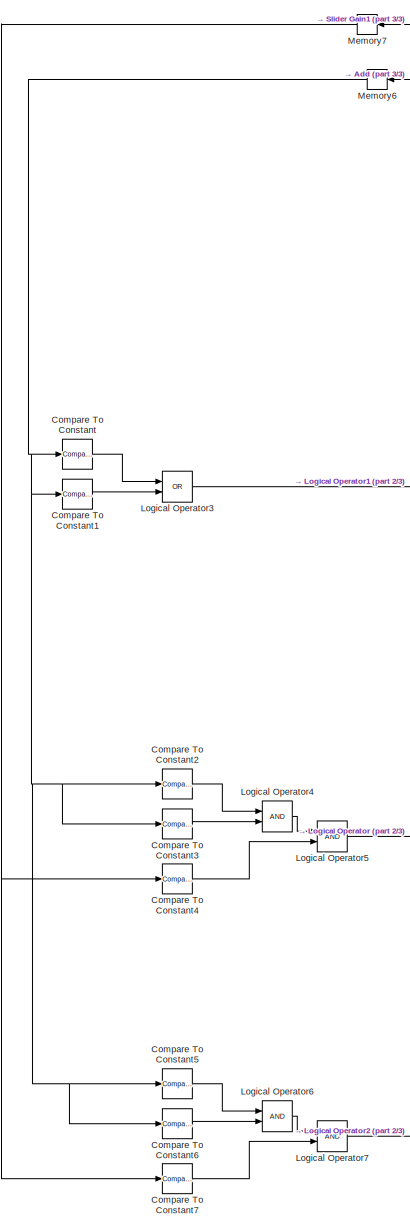
[diagram: MISSION SERVER QDRONE SWARM/Racetrack - part 1/3, left side, full height]
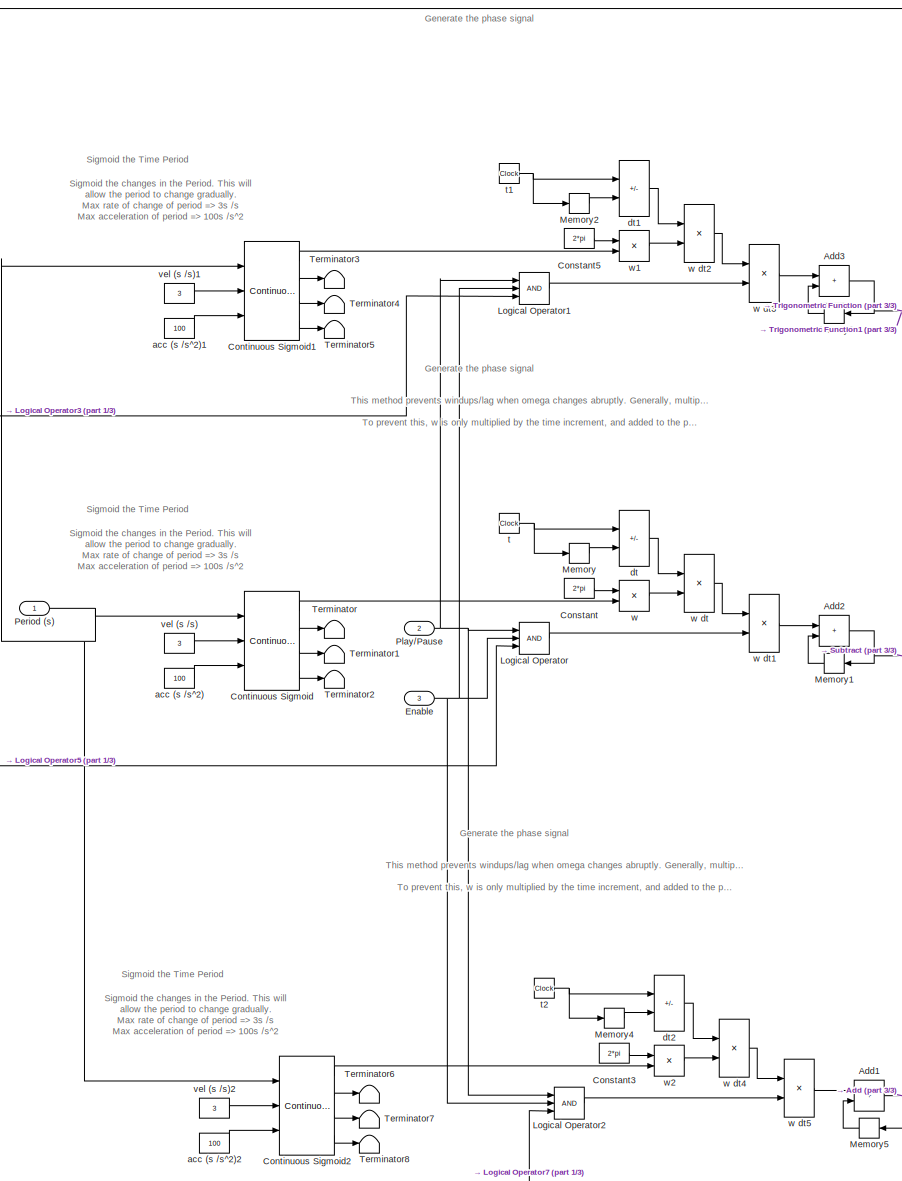
[diagram: MISSION SERVER QDRONE SWARM/Racetrack - part 2/3, center side, full height]
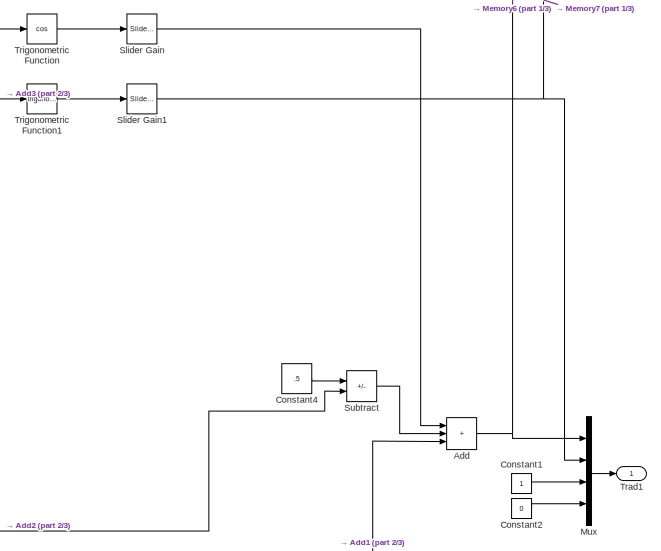
[diagram: MISSION SERVER QDRONE SWARM/Racetrack - part 3/3, middle right region]
BLOCK [SubSystem] MISSION SERVER QDRONE SWARM/Racetrack
  Commented = on
  Ports = [3, 1]
  RequestExecContextInheritance = off
BLOCK [Sum] MISSION SERVER QDRONE SWARM/Racetrack/Add
  IconShape = rectangular
  Inputs = +++
  Ports = [3, 1]
BLOCK [Sum] MISSION SERVER QDRONE SWARM/Racetrack/Add1
  IconShape = rectangular
  Ports = [2, 1]
BLOCK [Sum] MISSION SERVER QDRONE SWARM/Racetrack/Add2
  IconShape = rectangular
  Ports = [2, 1]
BLOCK [Sum] MISSION SERVER QDRONE SWARM/Racetrack/Add3
  IconShape = rectangular
  Ports = [2, 1]
BLOCK [Reference] MISSION SERVER QDRONE SWARM/Racetrack/Compare To Constant  REF=simulink/Logic and Bit
Operations/Compare
To Constant
  Ports = [1, 1]
  SourceBlock = simulink/Logic and Bit\nOperations/Compare\nTo Constant
  SourceProductBaseCode = SL
  SourceType = Compare To Constant
BLOCK [Reference] MISSION SERVER QDRONE SWARM/Racetrack/Compare To Constant1  REF=simulink/Logic and Bit
Operations/Compare
To Constant
  Ports = [1, 1]
  SourceBlock = simulink/Logic and Bit\nOperations/Compare\nTo Constant
  SourceProductBaseCode = SL
  SourceType = Compare To Constant
BLOCK [Reference] MISSION SERVER QDRONE SWARM/Racetrack/Compare To Constant2  REF=simulink/Logic and Bit
Operations/Compare
To Constant
  Ports = [1, 1]
  SourceBlock = simulink/Logic and Bit\nOperations/Compare\nTo Constant
  SourceProductBaseCode = SL
  SourceType = Compare To Constant
BLOCK [Reference] MISSION SERVER QDRONE SWARM/Racetrack/Compare To Constant3  REF=simulink/Logic and Bit
Operations/Compare
To Constant
  Ports = [1, 1]
  SourceBlock = simulink/Logic and Bit\nOperations/Compare\nTo Constant
  SourceProductBaseCode = SL
  SourceType = Compare To Constant
BLOCK [Reference] MISSION SERVER QDRONE SWARM/Racetrack/Compare To Constant4  REF=simulink/Logic and Bit
Operations/Compare
To Constant
  Ports = [1, 1]
  SourceBlock = simulink/Logic and Bit\nOperations/Compare\nTo Constant
  SourceProductBaseCode = SL
  SourceType = Compare To Constant
BLOCK [Reference] MISSION SERVER QDRONE SWARM/Racetrack/Compare To Constant5  REF=simulink/Logic and Bit
Operations/Compare
To Constant
  Ports = [1, 1]
  SourceBlock = simulink/Logic and Bit\nOperations/Compare\nTo Constant
  SourceProductBaseCode = SL
  SourceType = Compare To Constant
BLOCK [Reference] MISSION SERVER QDRONE SWARM/Racetrack/Compare To Constant6  REF=simulink/Logic and Bit
Operations/Compare
To Constant
  Ports = [1, 1]
  SourceBlock = simulink/Logic and Bit\nOperations/Compare\nTo Constant
  SourceProductBaseCode = SL
  SourceType = Compare To Constant
BLOCK [Reference] MISSION SERVER QDRONE SWARM/Racetrack/Compare To Constant7  REF=simulink/Logic and Bit
Operations/Compare
To Constant
  Ports = [1, 1]
  SourceBlock = simulink/Logic and Bit\nOperations/Compare\nTo Constant
  SourceProductBaseCode = SL
  SourceType = Compare To Constant
BLOCK [Constant] MISSION SERVER QDRONE SWARM/Racetrack/Constant
  Value = 2*pi
BLOCK [Constant] MISSION SERVER QDRONE SWARM/Racetrack/Constant1
BLOCK [Constant] MISSION SERVER QDRONE SWARM/Racetrack/Constant2
  Value = 0
BLOCK [Constant] MISSION SERVER QDRONE SWARM/Racetrack/Constant3
  Value = 2*pi
BLOCK [Constant] MISSION SERVER QDRONE SWARM/Racetrack/Constant4
  Value = .5
BLOCK [Constant] MISSION SERVER QDRONE SWARM/Racetrack/Constant5
  Value = 2*pi
BLOCK [Reference] MISSION SERVER QDRONE SWARM/Racetrack/Continuous Sigmoid  REF=quarc_library/Sources/Sigmoids/Continuous Sigmoid
  Ports = [3, 4]
  SourceBlock = quarc_library/Sources/Sigmoids/Continuous Sigmoid
  SourceProductName = QUARC Targets
  SourceType = Continuous Sigmoid
BLOCK [Reference] MISSION SERVER QDRONE SWARM/Racetrack/Continuous Sigmoid1  REF=quarc_library/Sources/Sigmoids/Continuous Sigmoid
  Ports = [3, 4]
  SourceBlock = quarc_library/Sources/Sigmoids/Continuous Sigmoid
  SourceProductName = QUARC Targets
  SourceType = Continuous Sigmoid
BLOCK [Reference] MISSION SERVER QDRONE SWARM/Racetrack/Continuous Sigmoid2  REF=quarc_library/Sources/Sigmoids/Continuous Sigmoid
  Ports = [3, 4]
  SourceBlock = quarc_library/Sources/Sigmoids/Continuous Sigmoid
  SourceProductName = QUARC Targets
  SourceType = Continuous Sigmoid
BLOCK [Inport] MISSION SERVER QDRONE SWARM/Racetrack/Enable
  Port = 3
BLOCK [Logic] MISSION SERVER QDRONE SWARM/Racetrack/Logical Operator
  AllPortsSameDT = off
  Inputs = 3
  OutDataTypeStr = boolean
  Ports = [3, 1]
BLOCK [Logic] MISSION SERVER QDRONE SWARM/Racetrack/Logical Operator1
  AllPortsSameDT = off
  Inputs = 3
  OutDataTypeStr = boolean
  Ports = [3, 1]
BLOCK [Logic] MISSION SERVER QDRONE SWARM/Racetrack/Logical Operator2
  AllPortsSameDT = off
  Inputs = 3
  OutDataTypeStr = boolean
  Ports = [3, 1]
BLOCK [Logic] MISSION SERVER QDRONE SWARM/Racetrack/Logical Operator3
  AllPortsSameDT = off
  Operator = OR
  OutDataTypeStr = boolean
  Ports = [2, 1]
BLOCK [Logic] MISSION SERVER QDRONE SWARM/Racetrack/Logical Operator4
  AllPortsSameDT = off
  OutDataTypeStr = boolean
  Ports = [2, 1]
BLOCK [Logic] MISSION SERVER QDRONE SWARM/Racetrack/Logical Operator5
  AllPortsSameDT = off
  OutDataTypeStr = boolean
  Ports = [2, 1]
BLOCK [Logic] MISSION SERVER QDRONE SWARM/Racetrack/Logical Operator6
  AllPortsSameDT = off
  OutDataTypeStr = boolean
  Ports = [2, 1]
BLOCK [Logic] MISSION SERVER QDRONE SWARM/Racetrack/Logical Operator7
  AllPortsSameDT = off
  OutDataTypeStr = boolean
  Ports = [2, 1]
BLOCK [Memory] MISSION SERVER QDRONE SWARM/Racetrack/Memory
BLOCK [Memory] MISSION SERVER QDRONE SWARM/Racetrack/Memory1
BLOCK [Memory] MISSION SERVER QDRONE SWARM/Racetrack/Memory2
BLOCK [Memory] MISSION SERVER QDRONE SWARM/Racetrack/Memory3
BLOCK [Memory] MISSION SERVER QDRONE SWARM/Racetrack/Memory4
BLOCK [Memory] MISSION SERVER QDRONE SWARM/Racetrack/Memory5
BLOCK [Memory] MISSION SERVER QDRONE SWARM/Racetrack/Memory6
BLOCK [Memory] MISSION SERVER QDRONE SWARM/Racetrack/Memory7
BLOCK [Mux] MISSION SERVER QDRONE SWARM/Racetrack/Mux
  DisplayOption = bar
  Ports = [4, 1]
BLOCK [Inport] MISSION SERVER QDRONE SWARM/Racetrack/Period (s)
BLOCK [Inport] MISSION SERVER QDRONE SWARM/Racetrack/Play//Pause
  Port = 2
BLOCK [Reference] MISSION SERVER QDRONE SWARM/Racetrack/Slider Gain  REF=simulink/Math
Operations/Slider
Gain
  Ports = [1, 1]
  SourceBlock = simulink/Math\nOperations/Slider\nGain
  SourceProductBaseCode = SL
  SourceType = Slider Gain
BLOCK [Reference] MISSION SERVER QDRONE SWARM/Racetrack/Slider Gain1  REF=simulink/Math
Operations/Slider
Gain
  Ports = [1, 1]
  SourceBlock = simulink/Math\nOperations/Slider\nGain
  SourceProductBaseCode = SL
  SourceType = Slider Gain
BLOCK [Sum] MISSION SERVER QDRONE SWARM/Racetrack/Subtract
  IconShape = rectangular
  Inputs = +-
  Ports = [2, 1]
BLOCK [Terminator] MISSION SERVER QDRONE SWARM/Racetrack/Terminator
BLOCK [Terminator] MISSION SERVER QDRONE SWARM/Racetrack/Terminator1
BLOCK [Terminator] MISSION SERVER QDRONE SWARM/Racetrack/Terminator2
BLOCK [Terminator] MISSION SERVER QDRONE SWARM/Racetrack/Terminator3
BLOCK [Terminator] MISSION SERVER QDRONE SWARM/Racetrack/Terminator4
BLOCK [Terminator] MISSION SERVER QDRONE SWARM/Racetrack/Terminator5
BLOCK [Terminator] MISSION SERVER QDRONE SWARM/Racetrack/Terminator6
BLOCK [Terminator] MISSION SERVER QDRONE SWARM/Racetrack/Terminator7
BLOCK [Terminator] MISSION SERVER QDRONE SWARM/Racetrack/Terminator8
BLOCK [Outport] MISSION SERVER QDRONE SWARM/Racetrack/Trad1
  VectorParamsAs1DForOutWhenUnconnected = off
BLOCK [Trigonometry] MISSION SERVER QDRONE SWARM/Racetrack/Trigonometric Function
  Operator = cos
  Ports = [1, 1]
BLOCK [Trigonometry] MISSION SERVER QDRONE SWARM/Racetrack/Trigonometric Function1
  Ports = [1, 1]
BLOCK [Constant] MISSION SERVER QDRONE SWARM/Racetrack/acc (s //s^2)
  Value = 100
BLOCK [Constant] MISSION SERVER QDRONE SWARM/Racetrack/acc (s //s^2)1
  Value = 100
BLOCK [Constant] MISSION SERVER QDRONE SWARM/Racetrack/acc (s //s^2)2
  Value = 100
BLOCK [Sum] MISSION SERVER QDRONE SWARM/Racetrack/dt
  IconShape = rectangular
  Inputs = +-
  Ports = [2, 1]
BLOCK [Sum] MISSION SERVER QDRONE SWARM/Racetrack/dt1
  IconShape = rectangular
  Inputs = +-
  Ports = [2, 1]
BLOCK [Sum] MISSION SERVER QDRONE SWARM/Racetrack/dt2
  IconShape = rectangular
  Inputs = +-
  Ports = [2, 1]
BLOCK [Clock] MISSION SERVER QDRONE SWARM/Racetrack/t
  Decimation = 1
BLOCK [Clock] MISSION SERVER QDRONE SWARM/Racetrack/t1
  Decimation = 1
BLOCK [Clock] MISSION SERVER QDRONE SWARM/Racetrack/t2
  Decimation = 1
BLOCK [Constant] MISSION SERVER QDRONE SWARM/Racetrack/vel (s //s)
  NameLocation = top
  Value = 3
BLOCK [Constant] MISSION SERVER QDRONE SWARM/Racetrack/vel (s //s)1
  NameLocation = top
  Value = 3
BLOCK [Constant] MISSION SERVER QDRONE SWARM/Racetrack/vel (s //s)2
  NameLocation = top
  Value = 3
BLOCK [Product] MISSION SERVER QDRONE SWARM/Racetrack/w
  Inputs = */
  Ports = [2, 1]
BLOCK [Product] MISSION SERVER QDRONE SWARM/Racetrack/w dt
  Ports = [2, 1]
BLOCK [Product] MISSION SERVER QDRONE SWARM/Racetrack/w dt1
  Ports = [2, 1]
BLOCK [Product] MISSION SERVER QDRONE SWARM/Racetrack/w dt2
  Ports = [2, 1]
BLOCK [Product] MISSION SERVER QDRONE SWARM/Racetrack/w dt3
  Ports = [2, 1]
BLOCK [Product] MISSION SERVER QDRONE SWARM/Racetrack/w dt4
  Ports = [2, 1]
BLOCK [Product] MISSION SERVER QDRONE SWARM/Racetrack/w dt5
  Ports = [2, 1]
BLOCK [Product] MISSION SERVER QDRONE SWARM/Racetrack/w1
  Inputs = */
  Ports = [2, 1]
BLOCK [Product] MISSION SERVER QDRONE SWARM/Racetrack/w2
  Inputs = */
  Ports = [2, 1]
BLOCK [Scope] MISSION SERVER QDRONE SWARM/Scope
  Floating = off
  NumInputPorts = 1
  Ports = [1]
  ScopeSpecificationString = Simulink.scopes.TimeScopeBlockCfg('CurrentConfiguration', extmgr.ConfigurationSet(extmgr.Configuration('Core','General UI',true),extmgr.Configuration('Core','Source UI',true),extmgr.Configuration('Sources','WiredSimulink',true),extmgr.Configuration('Visuals','Time Domain',true,'SerializedDisplays',{struct('MinYLimReal','-3.83339','MaxYLimReal','34.50291','YLabelReal','','MinYLimMag','0.00000','Max...<+1398ch>
BLOCK [Scope] MISSION SERVER QDRONE SWARM/Scope2
  Floating = off
  NumInputPorts = 1
  Ports = [1]
  ScopeSpecificationString = Simulink.scopes.TimeScopeBlockCfg('CurrentConfiguration', extmgr.ConfigurationSet(extmgr.Configuration('Core','General UI',true),extmgr.Configuration('Core','Source UI',true),extmgr.Configuration('Sources','WiredSimulink',true,'DataLoggingVariableName','ScopeData1'),extmgr.Configuration('Visuals','Time Domain',true,'SerializedDisplays',{struct('MinYLimReal','-1.76723','MaxYLimReal','1.30747','YLab...<+1599ch>
BLOCK [Selector] MISSION SERVER QDRONE SWARM/Selector
  IndexOptions = Index vector (dialog)
  Indices = [1:2]
  InputPortWidth = 3
  OutputSizes = 1
  Ports = [1, 1]
BLOCK [Selector] MISSION SERVER QDRONE SWARM/Selector2
  IndexOptions = Index vector (dialog)
  Indices = [1]
  InputPortWidth = 4
  NameLocation = top
  OutputSizes = 1
  Ports = [1, 1]
BLOCK [Reference] MISSION SERVER QDRONE SWARM/Show Message on Host   REF=quarc_library/Sinks/Error Handling/Show Message on Host
  AttributesFormatString = "%<message>"
  Ports = [1]
  SourceBlock = quarc_library/Sinks/Error Handling/Show Message on Host
  SourceProductName = QUARC Targets
  SourceType = Host Show Message
BLOCK [SubSystem] MISSION SERVER QDRONE SWARM/Subsystem
  Ports = [1, 1]
  RequestExecContextInheritance = off
BLOCK [Outport] MISSION SERVER QDRONE SWARM/Subsystem/Comm Issue
  VectorParamsAs1DForOutWhenUnconnected = off
BLOCK [Inport] MISSION SERVER QDRONE SWARM/Subsystem/Communication Issue (0,1)
BLOCK [Logic] MISSION SERVER QDRONE SWARM/Subsystem/Logical Operator
  AllPortsSameDT = off
  Inputs = 1
  Operator = OR
  OutDataTypeStr = boolean
  Ports = [1, 1]
BLOCK [Product] MISSION SERVER QDRONE SWARM/Subsystem/Product
  Ports = [2, 1]
BLOCK [Reference] MISSION SERVER QDRONE SWARM/Subsystem/Show Message on Host  REF=quarc_library/Sinks/Error Handling/Show Message on Host
  AttributesFormatString = "%<message>"
  Ports = [1]
  SourceBlock = quarc_library/Sinks/Error Handling/Show Message on Host
  SourceProductName = QUARC Targets
  SourceType = Host Show Message
BLOCK [SubSystem] MISSION SERVER QDRONE SWARM/Subsystem/Triggered Subsystem
  Ports = [0, 1, 0, 1]
  RequestExecContextInheritance = off
  TreatAsAtomicUnit = on
BLOCK [Sum] MISSION SERVER QDRONE SWARM/Subsystem/Triggered Subsystem/Add
  IconShape = rectangular
  Ports = [2, 1]
BLOCK [Outport] MISSION SERVER QDRONE SWARM/Subsystem/Triggered Subsystem/Communication Issue (0,1)
  InitialOutput = 0
  VectorParamsAs1DForOutWhenUnconnected = off
BLOCK [Reference] MISSION SERVER QDRONE SWARM/Subsystem/Triggered Subsystem/Compare To Constant  REF=simulink/Logic and Bit
Operations/Compare
To Constant
  Ports = [1, 1]
  SourceBlock = simulink/Logic and Bit\nOperations/Compare\nTo Constant
  SourceProductBaseCode = SL
  SourceType = Compare To Constant
BLOCK [Constant] MISSION SERVER QDRONE SWARM/Subsystem/Triggered Subsystem/Constant
BLOCK [Memory] MISSION SERVER QDRONE SWARM/Subsystem/Triggered Subsystem/Memory
  InheritSampleTime = on
BLOCK [TriggerPort] MISSION SERVER QDRONE SWARM/Subsystem/Triggered Subsystem/Trigger
  Ports = []
  StatesWhenEnabling = held
  TriggerType = falling
  VariantControl = Variant
BLOCK [Switch] MISSION SERVER QDRONE SWARM/Switch
  Criteria = u2 > Threshold
  InputSameDT = off
  SaturateOnIntegerOverflow = off
BLOCK [Switch] MISSION SERVER QDRONE SWARM/Switch3
  Criteria = u2 > Threshold
  InputSameDT = off
  SaturateOnIntegerOverflow = off
BLOCK [Switch] MISSION SERVER QDRONE SWARM/Switch4
  InputSameDT = off
  SaturateOnIntegerOverflow = off
  Threshold = 1
BLOCK [Terminator] MISSION SERVER QDRONE SWARM/Terminator
BLOCK [Terminator] MISSION SERVER QDRONE SWARM/Terminator2
  Commented = on
BLOCK [Reference] MISSION SERVER QDRONE SWARM/Time1  REF=quarc_library/Sources/Time/Time
  Ports = [0, 1]
  SourceBlock = quarc_library/Sources/Time/Time
  SourceProductName = QUARC Targets
  SourceType = Time
BLOCK [Outport] MISSION SERVER QDRONE SWARM/Timestamp to send (s)
  NameLocation = top
  Port = 5
  VectorParamsAs1DForOutWhenUnconnected = off
BLOCK [Inport] MISSION SERVER QDRONE SWARM/Timestamps received (s) 
  Port = 2
BLOCK [Reference] MISSION SERVER QDRONE SWARM/To Host File  REF=quarc_library/Sinks/To Host/To Host File
  AttributesFormatString = %<final_file_name>
  Ports = [1]
  SourceBlock = quarc_library/Sinks/To Host/To Host File
  SourceProductName = QUARC Targets
  SourceType = To Host File
BLOCK [Outport] MISSION SERVER QDRONE SWARM/Triggers (0,1)
  NameLocation = top
  VectorParamsAs1DForOutWhenUnconnected = off
BLOCK [Outport] MISSION SERVER QDRONE SWARM/V1 Desired Pose (m, rad) [4]
  NameLocation = top
  Port = 4
  VectorParamsAs1DForOutWhenUnconnected = off
BLOCK [Outport] MISSION SERVER QDRONE SWARM/V1 Measured Pose (m, rad) [4]
  NameLocation = top
  Port = 3
  VectorParamsAs1DForOutWhenUnconnected = off
BLOCK [Outport] MISSION SERVER QDRONE SWARM/V1 isTracking (0,1)
  NameLocation = top
  Port = 2
  VectorParamsAs1DForOutWhenUnconnected = off
BLOCK [Constant] MISSION SERVER QDRONE SWARM/Vehicle ID
BLOCK [SubSystem] MISSION SERVER QDRONE SWARM/calculate loop back time
  Ports = [2, 1]
  RequestExecContextInheritance = off
BLOCK [Outport] MISSION SERVER QDRONE SWARM/calculate loop back time/Loop Back Tmes (s) 
  VectorParamsAs1DForOutWhenUnconnected = off
BLOCK [Sum] MISSION SERVER QDRONE SWARM/calculate loop back time/Subtract
  IconShape = rectangular
  Inputs = +-
  Ports = [2, 1]
BLOCK [Inport] MISSION SERVER QDRONE SWARM/calculate loop back time/Timestamp sent (s)
BLOCK [Inport] MISSION SERVER QDRONE SWARM/calculate loop back time/Timestamps received (s) 
  Port = 2
BLOCK [SubSystem] MISSION SERVER QDRONE SWARM/holds current pos instead of sending home
  Ports = [1, 1, 1]
  RequestExecContextInheritance = off
  TreatAsAtomicUnit = on
BLOCK [EnablePort] MISSION SERVER QDRONE SWARM/holds current pos instead of sending home/Enable
  Ports = []
BLOCK [Inport] MISSION SERVER QDRONE SWARM/holds current pos instead of sending home/Measured Pose (m, rad) [4]
BLOCK [Outport] MISSION SERVER QDRONE SWARM/holds current pos instead of sending home/Out1
BLOCK [Inport] MISSION SERVER QDRONE SWARM/triggers
  Port = 4
BLOCK [Mux] Mux3
  DisplayOption = bar
  Inputs = 5
  Ports = [5, 1]
BLOCK [Reference] Quanser  REF=quarc_library/Logos/Quanser
  Ports = []
  SourceBlock = quarc_library/Logos/Quanser
  SourceProductName = QUARC Targets
  SourceType = Powered by Quanser
ANNOTATION (root): Use this model as the supervisor running on your PC. 1. Under the MISSION SERVER QDRONE HOVER subsystem, open the the Joystick subsystem, and ensure that the Host Game Controller block's Controller Number parameter is set to SPEKTRUM RECEIVER NOTE : In case of unexpected behaviour or emergencies, use the Emergency Abort to cut all power to the motors (this will result in the drone falling). This 2...<+517ch>
ANNOTATION (root): Quanser Autonomous Vehicles Research Studio Mission Server
ANNOTATION Communication  UNITY/Communication: Argument (- IP_address ) is set at the MEX-file arguments found at Model Configuration Properties > Code Generation > Interface Format: tcpip://192.168.2.H:18000 where H is the last digits of your ground station's IP address (use ipconfig in a command prompt to find it out).
ANNOTATION Communication  UNITY/Communication: incoming data should be , timestamp(1), triggers(3), desired pos(4)
ANNOTATION Communication  UNITY/Order and convert to 1D array: Current State Initializing Communicaiton Issue Tracking Issue Low Battery
ANNOTATION Communication  UNITY/Order and convert to 1D array: Arm/Disarm Takeoff/Land Emergency Stop JoyStick Issue
ANNOTATION Communication  UNITY/Order and convert to 1D array: Command Throttle At Trim Command Throttle Close to 0 Controller Throttle Close to 0
ANNOTATION Communication  UNITY/Order and convert to 1D array: Sensor Failure
ANNOTATION Communication  UNITY/Order and convert to 1D array: Takeoff Successful Flying too Low Flying too High Close to Ground
ANNOTATION Communication  UNITY/Order and convert to 1D array: next_state Error Stop_model
ANNOTATION Communication  UNITY/Order and convert to 1D array: roll pitch yaw
ANNOTATION Communication  UNITY/Order and convert to 1D array: time x y z
ANNOTATION MISSION SERVER QDRONE SWARM: Commands Interface - connects the user to the joystick to send ARM, TAKEOFF, ESTOP commands etc. Also provides a. ENABLE - to switch from home to circular trajectories and b. PLAY/PAUSE - to start/pause circular trajectories Localization Data Server - provides localization estimates from the Optitrack Camera system Command Generation - Sends corresponding trajectoriy commands to each vehicle and c...<+550ch>
ANNOTATION MISSION SERVER QDRONE SWARM: Command Generation V1
ANNOTATION MISSION SERVER QDRONE SWARM: Commands Interface
ANNOTATION MISSION SERVER QDRONE SWARM: Communication and Loopback time monitoring
ANNOTATION MISSION SERVER QDRONE SWARM: Data Logging
ANNOTATION MISSION SERVER QDRONE SWARM: Localization Data Server
ANNOTATION MISSION SERVER QDRONE SWARM: The commander stabilizer is new, so expects 4 triggers
ANNOTATION MISSION SERVER QDRONE SWARM: Trajectory Generation
ANNOTATION MISSION SERVER QDRONE SWARM: Use throttle to play/pause, right switch to enable
ANNOTATION MISSION SERVER QDRONE SWARM/Calculate Home Pose: During the first 5 seconds of starting the Mission Server, this subsystem finds the average pose measurement of the stationary QDrone, and records it as it's home position. This home position will reflect whatever pose the user initially places the QDrone in. This is with respect to the Research Studio Frame (RSF). NOTE : The height value of the home pose is the initial measured height PLUS the Ho...<+26ch>
ANNOTATION MISSION SERVER QDRONE SWARM/Data Server (Localization) : Double-click on the OptiTrack Trackables block. Click on the ... icon under Calibration file: and select the .cal file created when calibrating the Optitrack cameras Click on the ... icon under Trackables definition file: and select the trackables file created when defining rigid bodies (for the QDrone you are about to use)
ANNOTATION MISSION SERVER QDRONE SWARM/Data Server (Localization) /Convention Correction (Motive Frame to Research Studio Frame) - Drone 1: This subsystem converts measurements in the Motive Frame (MF)(raw optitrack) into the Research Studio Frame (RSF).
ANNOTATION MISSION SERVER QDRONE SWARM/Data Server (Localization) /Convention Correction (Motive Frame to Research Studio Frame) - Drone 1: MF_R_RSF
ANNOTATION MISSION SERVER QDRONE SWARM/Data Server (Localization) /Convention Correction (Motive Frame to Research Studio Frame) - Drone 1: RPY in MF
ANNOTATION MISSION SERVER QDRONE SWARM/Data Server (Localization) /Convention Correction (Motive Frame to Research Studio Frame) - Drone 1: RPY in RSF
ANNOTATION MISSION SERVER QDRONE SWARM/Data Server (Localization) /Convention Correction (Motive Frame to Research Studio Frame) - Drone 1: RSF_R_MF
ANNOTATION MISSION SERVER QDRONE SWARM/Data Server (Localization) /Convention Correction (Motive Frame to Research Studio Frame) - Drone 1: XYZ in MF
ANNOTATION MISSION SERVER QDRONE SWARM/Data Server (Localization) /Convention Correction (Motive Frame to Research Studio Frame) - Drone 1: XYZ in RSF
ANNOTATION MISSION SERVER QDRONE SWARM/Data Server (Localization) /Convention Correction (Motive Frame to Research Studio Frame) - Drone 1: attitude
ANNOTATION MISSION SERVER QDRONE SWARM/Data Server (Localization) /Convention Correction (Motive Frame to Research Studio Frame) - Drone 1: position
ANNOTATION MISSION SERVER QDRONE SWARM/Data Server (Localization) /Convention Correction (Motive Frame to Research Studio Frame) - Drone 1/Prevent Gimbal Lock: Remapping the rotation order to prevent gimbal lock in heading/yaw due to Euler singularity condition
ANNOTATION MISSION SERVER QDRONE SWARM/JOYSTICK: Throttle Roll Pitch Yaw
ANNOTATION MISSION SERVER QDRONE SWARM/JOYSTICK/Spectrum DXe Mapping: -0.5 <= Rx <= 0.5
ANNOTATION MISSION SERVER QDRONE SWARM/JOYSTICK/Spectrum DXe Mapping: -0.5 <= x <= 0.5
ANNOTATION MISSION SERVER QDRONE SWARM/JOYSTICK/Spectrum DXe Mapping: -0.5 <= y <= 0.5
ANNOTATION MISSION SERVER QDRONE SWARM/JOYSTICK/Spectrum DXe Mapping: -0.5 <= z <= 0.5
ANNOTATION MISSION SERVER QDRONE SWARM/JOYSTICK/Spectrum DXe Mapping: -1 <= Pitch <= 1
ANNOTATION MISSION SERVER QDRONE SWARM/JOYSTICK/Spectrum DXe Mapping: -1 <= Roll <= 1
ANNOTATION MISSION SERVER QDRONE SWARM/JOYSTICK/Spectrum DXe Mapping: -1 <= Ry <= 1
ANNOTATION MISSION SERVER QDRONE SWARM/JOYSTICK/Spectrum DXe Mapping: -1 <= Yaw <= 1
ANNOTATION MISSION SERVER QDRONE SWARM/JOYSTICK/Spectrum DXe Mapping: 0 <= Slider[1] <= 1
ANNOTATION MISSION SERVER QDRONE SWARM/JOYSTICK/Spectrum DXe Mapping: 0 <= Throttle <= 1
ANNOTATION MISSION SERVER QDRONE SWARM/Measurement Conditioning 1: Position and Position Rate Estimates Conditioning
ANNOTATION MISSION SERVER QDRONE SWARM/Racetrack: Generate the phase signal
ANNOTATION MISSION SERVER QDRONE SWARM/Racetrack: Sigmoid the Time Period
ANNOTATION MISSION SERVER QDRONE SWARM/Racetrack: Sigmoid the changes in the Period. This will allow the period to change gradually. Max rate of change of period => 3s /s Max acceleration of period => 100s /s^2
ANNOTATION MISSION SERVER QDRONE SWARM/Racetrack: This method prevents windups/lag when omega changes abruptly. Generally, multiplying w with t directly would work. However, when T increases, w decreases, causing "w t" to decrease as well. This will cause unrealistic/discontinuous changes in the trajectories generated downstream. To prevent this, w is only multiplied by the time increment, and added to the previous "w t" value.
ANNOTATION MISSION SERVER QDRONE SWARM/Subsystem: Pass along the communication issue flag only after the connection with the vehicle model was established.
ANNOTATION MISSION SERVER QDRONE SWARM/Subsystem/Triggered Subsystem: This looks for the first falling edge to trigger a communication issue, because the mission server model starts first.
LINE Communication  UNITY/Communication/Cast To Double:1 -> Communication  UNITY/Communication/Rate Transition:1
LINE Communication  UNITY/Communication/Constant:1 -> Communication  UNITY/Communication/Stream Server1:2
LINE Communication  UNITY/Communication/Data to Send :1 -> Communication  UNITY/Communication/Rate Transition1:1
LINE Communication  UNITY/Communication/Detect Communication loss/Data Type Conversion:1 -> Communication  UNITY/Communication/Detect Communication loss/Communication Issue (0,1):1
LINE Communication  UNITY/Communication/Detect Communication loss/Error:1 -> Communication  UNITY/Communication/Detect Communication loss/MATLAB Function:3
LINE Communication  UNITY/Communication/Detect Communication loss/MATLAB Function:1 -> Communication  UNITY/Communication/Detect Communication loss/Threshold:1
LINE Communication  UNITY/Communication/Detect Communication loss/State:1 -> Communication  UNITY/Communication/Detect Communication loss/MATLAB Function:2
LINE Communication  UNITY/Communication/Detect Communication loss/Threshold:1 -> Communication  UNITY/Communication/Detect Communication loss/Data Type Conversion:1
LINE Communication  UNITY/Communication/Detect Communication loss/Threshold:2 -> Communication  UNITY/Communication/Detect Communication loss/Terminator2:1
LINE Communication  UNITY/Communication/Detect Communication loss/Time:1 -> Communication  UNITY/Communication/Detect Communication loss/MATLAB Function:1
LINE Communication  UNITY/Communication/Detect Communication loss:1 -> Communication  UNITY/Communication/Communication Issue (0,1):1
LINE Communication  UNITY/Communication/Rate Transition1:1 -> Communication  UNITY/Communication/Stream Server1:1
LINE Communication  UNITY/Communication/Rate Transition2:1 -> Communication  UNITY/Communication/Detect Communication loss:1
LINE Communication  UNITY/Communication/Rate Transition3:1 -> Communication  UNITY/Communication/Detect Communication loss:2
LINE Communication  UNITY/Communication/Rate Transition:1 -> Communication  UNITY/Communication/Data Out [7]:1
LINE Communication  UNITY/Communication/Stream Server1:1 -> Communication  UNITY/Communication/Rate Transition2:1
LINE Communication  UNITY/Communication/Stream Server1:2 -> Communication  UNITY/Communication/Rate Transition3:1
LINE Communication  UNITY/Communication/Stream Server1:3 -> Communication  UNITY/Communication/Terminator1:1
LINE Communication  UNITY/Communication/Stream Server1:4 -> Communication  UNITY/Communication/Cast To Double:1
LINE Communication  UNITY/Communication/Stream Server1:5 -> Communication  UNITY/Communication/Terminator2:1
NET Communication  UNITY/Communication:1 -> Communication  UNITY/Display1:1, Communication  UNITY/Scope3:1, Communication  UNITY/throw out time:1
LINE Communication  UNITY/Communication:2 -> Communication  UNITY/Display:1
LINE Communication  UNITY/Data Type Conversion1:1 -> Communication  UNITY/triggers:1
LINE Communication  UNITY/DesiredPos :1 -> Communication  UNITY/DesiredPos:1
LINE Communication  UNITY/Elapsed Time:1 -> Communication  UNITY/Mux2:1
LINE Communication  UNITY/MeasuredPos:1 -> Communication  UNITY/Selector:1
LINE Communication  UNITY/Monitoring Signals:1 -> Communication  UNITY/Mux2:4
LINE Communication  UNITY/Mux2:1 -> Communication  UNITY/Order and convert to 1D array:1
LINE Communication  UNITY/Order and convert to 1D array/Cast To Single:1 -> Communication  UNITY/Order and convert to 1D array/Demux:1
LINE Communication  UNITY/Order and convert to 1D array/Demux:1 -> Communication  UNITY/Order and convert to 1D array/Mux:1
LINE Communication  UNITY/Order and convert to 1D array/Demux:10 -> Communication  UNITY/Order and convert to 1D array/Mux:10
LINE Communication  UNITY/Order and convert to 1D array/Demux:11 -> Communication  UNITY/Order and convert to 1D array/Mux:11
LINE Communication  UNITY/Order and convert to 1D array/Demux:12 -> Communication  UNITY/Order and convert to 1D array/Mux:12
LINE Communication  UNITY/Order and convert to 1D array/Demux:13 -> Communication  UNITY/Order and convert to 1D array/Mux:13
LINE Communication  UNITY/Order and convert to 1D array/Demux:14 -> Communication  UNITY/Order and convert to 1D array/Mux:14
LINE Communication  UNITY/Order and convert to 1D array/Demux:15 -> Communication  UNITY/Order and convert to 1D array/Mux:15
LINE Communication  UNITY/Order and convert to 1D array/Demux:16 -> Communication  UNITY/Order and convert to 1D array/Mux:16
LINE Communication  UNITY/Order and convert to 1D array/Demux:17 -> Communication  UNITY/Order and convert to 1D array/Mux:17
LINE Communication  UNITY/Order and convert to 1D array/Demux:18 -> Communication  UNITY/Order and convert to 1D array/Mux:18
LINE Communication  UNITY/Order and convert to 1D array/Demux:19 -> Communication  UNITY/Order and convert to 1D array/Mux:19
LINE Communication  UNITY/Order and convert to 1D array/Demux:2 -> Communication  UNITY/Order and convert to 1D array/Mux:2
LINE Communication  UNITY/Order and convert to 1D array/Demux:20 -> Communication  UNITY/Order and convert to 1D array/Mux:20
LINE Communication  UNITY/Order and convert to 1D array/Demux:21 -> Communication  UNITY/Order and convert to 1D array/Mux:21
LINE Communication  UNITY/Order and convert to 1D array/Demux:22 -> Communication  UNITY/Order and convert to 1D array/Mux:22
LINE Communication  UNITY/Order and convert to 1D array/Demux:23 -> Communication  UNITY/Order and convert to 1D array/Mux:23
LINE Communication  UNITY/Order and convert to 1D array/Demux:24 -> Communication  UNITY/Order and convert to 1D array/Mux:24
LINE Communication  UNITY/Order and convert to 1D array/Demux:25 -> Communication  UNITY/Order and convert to 1D array/Mux:25
LINE Communication  UNITY/Order and convert to 1D array/Demux:26 -> Communication  UNITY/Order and convert to 1D array/Mux:26
LINE Communication  UNITY/Order and convert to 1D array/Demux:27 -> Communication  UNITY/Order and convert to 1D array/Mux:27
LINE Communication  UNITY/Order and convert to 1D array/Demux:3 -> Communication  UNITY/Order and convert to 1D array/Mux:3
LINE Communication  UNITY/Order and convert to 1D array/Demux:4 -> Communication  UNITY/Order and convert to 1D array/Mux:4
LINE Communication  UNITY/Order and convert to 1D array/Demux:5 -> Communication  UNITY/Order and convert to 1D array/Mux:5
LINE Communication  UNITY/Order and convert to 1D array/Demux:6 -> Communication  UNITY/Order and convert to 1D array/Mux:6
LINE Communication  UNITY/Order and convert to 1D array/Demux:7 -> Communication  UNITY/Order and convert to 1D array/Mux:7
LINE Communication  UNITY/Order and convert to 1D array/Demux:8 -> Communication  UNITY/Order and convert to 1D array/Mux:8
LINE Communication  UNITY/Order and convert to 1D array/Demux:9 -> Communication  UNITY/Order and convert to 1D array/Mux:9
LINE Communication  UNITY/Order and convert to 1D array/Doubles:1 -> Communication  UNITY/Order and convert to 1D array/Cast To Single:1
NET Communication  UNITY/Order and convert to 1D array/Mux:1 -> Communication  UNITY/Order and convert to 1D array/Display:1, Communication  UNITY/Order and convert to 1D array/Reshape:1
LINE Communication  UNITY/Order and convert to 1D array/Reshape:1 -> Communication  UNITY/Order and convert to 1D array/Array :1
LINE Communication  UNITY/Order and convert to 1D array:1 -> Communication  UNITY/Communication:1
LINE Communication  UNITY/Selector:1 -> Communication  UNITY/Mux2:2
LINE Communication  UNITY/Triggers:1 -> Communication  UNITY/Data Type Conversion1:1
NET Communication  UNITY/Unit Delay:1 -> Communication  UNITY/DesiredPos :1, Communication  UNITY/Triggers:1
LINE Communication  UNITY/pqr:1 -> Communication  UNITY/Mux2:3
LINE Communication  UNITY/throw out time:1 -> Communication  UNITY/Unit Delay:1
LINE Communication  UNITY:1 -> MISSION SERVER QDRONE SWARM:3
LINE Communication  UNITY:2 -> MISSION SERVER QDRONE SWARM:4
LINE Communication V1/Constant:1 -> Communication V1/Stream Server:2
LINE Communication V1/Data In:1 -> Communication V1/Stream Server:1
LINE Communication V1/Data Type Conversion1:1 -> Communication V1/monitoring sigs:1
LINE Communication V1/Data Type Conversion2:1 -> Communication V1/pqr:1
LINE Communication V1/Data Type Conversion:1 -> Communication V1/Data Out:1
LINE Communication V1/Detect Communication loss/Data Type Conversion:1 -> Communication V1/Detect Communication loss/Communication Issue (0,1):1
LINE Communication V1/Detect Communication loss/Error:1 -> Communication V1/Detect Communication loss/MATLAB Function:3
LINE Communication V1/Detect Communication loss/MATLAB Function:1 -> Communication V1/Detect Communication loss/Threshold:1
LINE Communication V1/Detect Communication loss/State:1 -> Communication V1/Detect Communication loss/MATLAB Function:2
LINE Communication V1/Detect Communication loss/Threshold:1 -> Communication V1/Detect Communication loss/Data Type Conversion:1
LINE Communication V1/Detect Communication loss/Threshold:2 -> Communication V1/Detect Communication loss/Terminator2:1
LINE Communication V1/Detect Communication loss/Time:1 -> Communication V1/Detect Communication loss/MATLAB Function:1
LINE Communication V1/Detect Communication loss:1 -> Communication V1/Communication Issue:1
NET Communication V1/Model Argument:1 -> Communication V1/Stream Server:3, Communication V1/String Display :1
LINE Communication V1/Selector1:1 -> Communication V1/Data Type Conversion1:1
LINE Communication V1/Selector2:1 -> Communication V1/Data Type Conversion2:1
LINE Communication V1/Selector:1 -> Communication V1/Data Type Conversion:1
NET Communication V1/Stream Server:1 -> Communication V1/Detect Communication loss:1, Communication V1/Display:1
LINE Communication V1/Stream Server:2 -> Communication V1/Detect Communication loss:2
LINE Communication V1/Stream Server:3 -> Communication V1/Terminator2:1
NET Communication V1/Stream Server:4 -> Communication V1/Selector1:1, Communication V1/Selector2:1, Communication V1/Selector:1
LINE Communication V1/Stream Server:5 -> Communication V1/Terminator1:1
LINE Communication V1:1 -> MISSION SERVER QDRONE SWARM:1
LINE Communication V1:2 -> MISSION SERVER QDRONE SWARM:2
LINE Communication V1:3 -> Communication  UNITY:1
LINE Communication V1:4 -> Communication  UNITY:2
LINE MISSION SERVER QDRONE SWARM/AND1:1 -> MISSION SERVER QDRONE SWARM/Mux:2
LINE MISSION SERVER QDRONE SWARM/AND:1 -> MISSION SERVER QDRONE SWARM/Mux:1
LINE MISSION SERVER QDRONE SWARM/Calculate Home Pose/Clock:1 -> MISSION SERVER QDRONE SWARM/Calculate Home Pose/Compare To Constant:1
LINE MISSION SERVER QDRONE SWARM/Calculate Home Pose/Compare To Constant:1 -> MISSION SERVER QDRONE SWARM/Calculate Home Pose/Logical Operator:1
LINE MISSION SERVER QDRONE SWARM/Calculate Home Pose/Constant1:1 -> MISSION SERVER QDRONE SWARM/Calculate Home Pose/One Shot:3
LINE MISSION SERVER QDRONE SWARM/Calculate Home Pose/Constant:1 -> MISSION SERVER QDRONE SWARM/Calculate Home Pose/One Shot:2
LINE MISSION SERVER QDRONE SWARM/Calculate Home Pose/Demux:1 -> MISSION SERVER QDRONE SWARM/Calculate Home Pose/Mux:1
LINE MISSION SERVER QDRONE SWARM/Calculate Home Pose/Demux:2 -> MISSION SERVER QDRONE SWARM/Calculate Home Pose/Mux:2
LINE MISSION SERVER QDRONE SWARM/Calculate Home Pose/Demux:3 -> MISSION SERVER QDRONE SWARM/Calculate Home Pose/Sum:1
LINE MISSION SERVER QDRONE SWARM/Calculate Home Pose/Demux:4 -> MISSION SERVER QDRONE SWARM/Calculate Home Pose/Terminator:1
LINE MISSION SERVER QDRONE SWARM/Calculate Home Pose/Enabled Moving Average:1 -> MISSION SERVER QDRONE SWARM/Calculate Home Pose/Demux:1
LINE MISSION SERVER QDRONE SWARM/Calculate Home Pose/Home height (m):1 -> MISSION SERVER QDRONE SWARM/Calculate Home Pose/Sum:2
LINE MISSION SERVER QDRONE SWARM/Calculate Home Pose/Logical Operator:1 -> MISSION SERVER QDRONE SWARM/Calculate Home Pose/Enabled Moving Average:enable
LINE MISSION SERVER QDRONE SWARM/Calculate Home Pose/Mux:1 -> MISSION SERVER QDRONE SWARM/Calculate Home Pose/Home Pose (m, rad) [4]:1
LINE MISSION SERVER QDRONE SWARM/Calculate Home Pose/One Shot:1 -> MISSION SERVER QDRONE SWARM/Calculate Home Pose/Logical Operator:2
NET MISSION SERVER QDRONE SWARM/Calculate Home Pose/Pose (m, rad ) [4]:1 -> MISSION SERVER QDRONE SWARM/Calculate Home Pose/Enabled Moving Average:1, MISSION SERVER QDRONE SWARM/Calculate Home Pose/Selector:1
LINE MISSION SERVER QDRONE SWARM/Calculate Home Pose/Round to nearest multiple of 2pi/Abs:1 -> MISSION SERVER QDRONE SWARM/Calculate Home Pose/Round to nearest multiple of 2pi/Switch:2
LINE MISSION SERVER QDRONE SWARM/Calculate Home Pose/Round to nearest multiple of 2pi/Add:1 -> MISSION SERVER QDRONE SWARM/Calculate Home Pose/Round to nearest multiple of 2pi/Switch:1
LINE MISSION SERVER QDRONE SWARM/Calculate Home Pose/Round to nearest multiple of 2pi/Gain:1 -> MISSION SERVER QDRONE SWARM/Calculate Home Pose/Round to nearest multiple of 2pi/Add:2
NET MISSION SERVER QDRONE SWARM/Calculate Home Pose/Round to nearest multiple of 2pi/In1:1 -> MISSION SERVER QDRONE SWARM/Calculate Home Pose/Round to nearest multiple of 2pi/Subtract:1, MISSION SERVER QDRONE SWARM/Calculate Home Pose/Round to nearest multiple of 2pi/fix to 2pi:1
LINE MISSION SERVER QDRONE SWARM/Calculate Home Pose/Round to nearest multiple of 2pi/Sign:1 -> MISSION SERVER QDRONE SWARM/Calculate Home Pose/Round to nearest multiple of 2pi/Gain:1
NET MISSION SERVER QDRONE SWARM/Calculate Home Pose/Round to nearest multiple of 2pi/Subtract:1 -> MISSION SERVER QDRONE SWARM/Calculate Home Pose/Round to nearest multiple of 2pi/Abs:1, MISSION SERVER QDRONE SWARM/Calculate Home Pose/Round to nearest multiple of 2pi/Sign:1
LINE MISSION SERVER QDRONE SWARM/Calculate Home Pose/Round to nearest multiple of 2pi/Switch:1 -> MISSION SERVER QDRONE SWARM/Calculate Home Pose/Round to nearest multiple of 2pi/Out1:1
NET MISSION SERVER QDRONE SWARM/Calculate Home Pose/Round to nearest multiple of 2pi/fix to 2pi/Constant2:1 -> MISSION SERVER QDRONE SWARM/Calculate Home Pose/Round to nearest multiple of 2pi/fix to 2pi/Divide:2, MISSION SERVER QDRONE SWARM/Calculate Home Pose/Round to nearest multiple of 2pi/fix to 2pi/Product:2
LINE MISSION SERVER QDRONE SWARM/Calculate Home Pose/Round to nearest multiple of 2pi/fix to 2pi/Divide:1 -> MISSION SERVER QDRONE SWARM/Calculate Home Pose/Round to nearest multiple of 2pi/fix to 2pi/Rounding Function:1
LINE MISSION SERVER QDRONE SWARM/Calculate Home Pose/Round to nearest multiple of 2pi/fix to 2pi/In1:1 -> MISSION SERVER QDRONE SWARM/Calculate Home Pose/Round to nearest multiple of 2pi/fix to 2pi/Divide:1
LINE MISSION SERVER QDRONE SWARM/Calculate Home Pose/Round to nearest multiple of 2pi/fix to 2pi/Product:1 -> MISSION SERVER QDRONE SWARM/Calculate Home Pose/Round to nearest multiple of 2pi/fix to 2pi/Out1:1
LINE MISSION SERVER QDRONE SWARM/Calculate Home Pose/Round to nearest multiple of 2pi/fix to 2pi/Rounding Function:1 -> MISSION SERVER QDRONE SWARM/Calculate Home Pose/Round to nearest multiple of 2pi/fix to 2pi/Product:1
NET MISSION SERVER QDRONE SWARM/Calculate Home Pose/Round to nearest multiple of 2pi/fix to 2pi:1 -> MISSION SERVER QDRONE SWARM/Calculate Home Pose/Round to nearest multiple of 2pi/Add:1, MISSION SERVER QDRONE SWARM/Calculate Home Pose/Round to nearest multiple of 2pi/Subtract:2, MISSION SERVER QDRONE SWARM/Calculate Home Pose/Round to nearest multiple of 2pi/Switch:3
LINE MISSION SERVER QDRONE SWARM/Calculate Home Pose/Round to nearest multiple of 2pi:1 -> MISSION SERVER QDRONE SWARM/Calculate Home Pose/Mux:4
LINE MISSION SERVER QDRONE SWARM/Calculate Home Pose/Selector:1 -> MISSION SERVER QDRONE SWARM/Calculate Home Pose/Round to nearest multiple of 2pi:1
LINE MISSION SERVER QDRONE SWARM/Calculate Home Pose/Sum:1 -> MISSION SERVER QDRONE SWARM/Calculate Home Pose/Mux:3
LINE MISSION SERVER QDRONE SWARM/Calculate Home Pose/isTracking?:1 -> MISSION SERVER QDRONE SWARM/Calculate Home Pose/One Shot:1
NET MISSION SERVER QDRONE SWARM/Calculate Home Pose:1 -> MISSION SERVER QDRONE SWARM/Goto14:1, MISSION SERVER QDRONE SWARM/Terminator:1
LINE MISSION SERVER QDRONE SWARM/Communication Issue (bool) :1 -> MISSION SERVER QDRONE SWARM/Subsystem:1
NET MISSION SERVER QDRONE SWARM/Constant1:1 -> MISSION SERVER QDRONE SWARM/Switch3:3, MISSION SERVER QDRONE SWARM/Switch4:3
NET MISSION SERVER QDRONE SWARM/Constant:1 -> MISSION SERVER QDRONE SWARM/Switch3:1, MISSION SERVER QDRONE SWARM/Switch4:1
NET MISSION SERVER QDRONE SWARM/Data Server (Localization) /Convention Correction (Motive Frame to Research Studio Frame) - Drone 1/Inverse of Orthonormal Matrix is its Transpose:1 -> MISSION SERVER QDRONE SWARM/Data Server (Localization) /Convention Correction (Motive Frame to Research Studio Frame) - Drone 1/Product1:1, MISSION SERVER QDRONE SWARM/Data Server (Localization) /Convention Correction (Motive Frame to Research Studio Frame) - Drone 1/Product:1
LINE MISSION SERVER QDRONE SWARM/Data Server (Localization) /Convention Correction (Motive Frame to Research Studio Frame) - Drone 1/Prevent Gimbal Lock/Attitude (rad) [3]:1 -> MISSION SERVER QDRONE SWARM/Data Server (Localization) /Convention Correction (Motive Frame to Research Studio Frame) - Drone 1/Prevent Gimbal Lock/Demux:1
LINE MISSION SERVER QDRONE SWARM/Data Server (Localization) /Convention Correction (Motive Frame to Research Studio Frame) - Drone 1/Prevent Gimbal Lock/Demux:1 -> MISSION SERVER QDRONE SWARM/Data Server (Localization) /Convention Correction (Motive Frame to Research Studio Frame) - Drone 1/Prevent Gimbal Lock/Euler Angles to Rotation Matrix (Relative YZX):3
LINE MISSION SERVER QDRONE SWARM/Data Server (Localization) /Convention Correction (Motive Frame to Research Studio Frame) - Drone 1/Prevent Gimbal Lock/Demux:2 -> MISSION SERVER QDRONE SWARM/Data Server (Localization) /Convention Correction (Motive Frame to Research Studio Frame) - Drone 1/Prevent Gimbal Lock/Euler Angles to Rotation Matrix (Relative YZX):1
LINE MISSION SERVER QDRONE SWARM/Data Server (Localization) /Convention Correction (Motive Frame to Research Studio Frame) - Drone 1/Prevent Gimbal Lock/Demux:3 -> MISSION SERVER QDRONE SWARM/Data Server (Localization) /Convention Correction (Motive Frame to Research Studio Frame) - Drone 1/Prevent Gimbal Lock/Euler Angles to Rotation Matrix (Relative YZX):2
LINE MISSION SERVER QDRONE SWARM/Data Server (Localization) /Convention Correction (Motive Frame to Research Studio Frame) - Drone 1/Prevent Gimbal Lock/Euler Angles from Rotation Matrix (Relative ZYX):1 -> MISSION SERVER QDRONE SWARM/Data Server (Localization) /Convention Correction (Motive Frame to Research Studio Frame) - Drone 1/Prevent Gimbal Lock/Mux:3
LINE MISSION SERVER QDRONE SWARM/Data Server (Localization) /Convention Correction (Motive Frame to Research Studio Frame) - Drone 1/Prevent Gimbal Lock/Euler Angles from Rotation Matrix (Relative ZYX):2 -> MISSION SERVER QDRONE SWARM/Data Server (Localization) /Convention Correction (Motive Frame to Research Studio Frame) - Drone 1/Prevent Gimbal Lock/Mux:2
LINE MISSION SERVER QDRONE SWARM/Data Server (Localization) /Convention Correction (Motive Frame to Research Studio Frame) - Drone 1/Prevent Gimbal Lock/Euler Angles from Rotation Matrix (Relative ZYX):3 -> MISSION SERVER QDRONE SWARM/Data Server (Localization) /Convention Correction (Motive Frame to Research Studio Frame) - Drone 1/Prevent Gimbal Lock/Mux:1
LINE MISSION SERVER QDRONE SWARM/Data Server (Localization) /Convention Correction (Motive Frame to Research Studio Frame) - Drone 1/Prevent Gimbal Lock/Euler Angles to Rotation Matrix (Relative YZX):1 -> MISSION SERVER QDRONE SWARM/Data Server (Localization) /Convention Correction (Motive Frame to Research Studio Frame) - Drone 1/Prevent Gimbal Lock/Euler Angles from Rotation Matrix (Relative ZYX):1
LINE MISSION SERVER QDRONE SWARM/Data Server (Localization) /Convention Correction (Motive Frame to Research Studio Frame) - Drone 1/Prevent Gimbal Lock/Mux:1 -> MISSION SERVER QDRONE SWARM/Data Server (Localization) /Convention Correction (Motive Frame to Research Studio Frame) - Drone 1/Prevent Gimbal Lock/Attitude (rad) [3] :1
LINE MISSION SERVER QDRONE SWARM/Data Server (Localization) /Convention Correction (Motive Frame to Research Studio Frame) - Drone 1/Prevent Gimbal Lock:1 -> MISSION SERVER QDRONE SWARM/Data Server (Localization) /Convention Correction (Motive Frame to Research Studio Frame) - Drone 1/rot_RSF (rad) [3]:1
LINE MISSION SERVER QDRONE SWARM/Data Server (Localization) /Convention Correction (Motive Frame to Research Studio Frame) - Drone 1/Product1:1 -> MISSION SERVER QDRONE SWARM/Data Server (Localization) /Convention Correction (Motive Frame to Research Studio Frame) - Drone 1/xyz_RSF (m) [3]:1
LINE MISSION SERVER QDRONE SWARM/Data Server (Localization) /Convention Correction (Motive Frame to Research Studio Frame) - Drone 1/Product:1 -> MISSION SERVER QDRONE SWARM/Data Server (Localization) /Convention Correction (Motive Frame to Research Studio Frame) - Drone 1/Prevent Gimbal Lock:1
LINE MISSION SERVER QDRONE SWARM/Data Server (Localization) /Convention Correction (Motive Frame to Research Studio Frame) - Drone 1/Rotate Basis from RSF to MF:1 -> MISSION SERVER QDRONE SWARM/Data Server (Localization) /Convention Correction (Motive Frame to Research Studio Frame) - Drone 1/Inverse of Orthonormal Matrix is its Transpose:1
LINE MISSION SERVER QDRONE SWARM/Data Server (Localization) /Convention Correction (Motive Frame to Research Studio Frame) - Drone 1/rot_MF (rad) [3]:1 -> MISSION SERVER QDRONE SWARM/Data Server (Localization) /Convention Correction (Motive Frame to Research Studio Frame) - Drone 1/Product:2
LINE MISSION SERVER QDRONE SWARM/Data Server (Localization) /Convention Correction (Motive Frame to Research Studio Frame) - Drone 1/xyz_MF (m) [3]:1 -> MISSION SERVER QDRONE SWARM/Data Server (Localization) /Convention Correction (Motive Frame to Research Studio Frame) - Drone 1/Product1:2
NET MISSION SERVER QDRONE SWARM/Data Server (Localization) /Convention Correction (Motive Frame to Research Studio Frame) - Drone 1:1 -> MISSION SERVER QDRONE SWARM/Data Server (Localization) /Goto1:1, MISSION SERVER QDRONE SWARM/Data Server (Localization) /Scope:1
NET MISSION SERVER QDRONE SWARM/Data Server (Localization) /Convention Correction (Motive Frame to Research Studio Frame) - Drone 1:2 -> MISSION SERVER QDRONE SWARM/Data Server (Localization) /Goto2:1, MISSION SERVER QDRONE SWARM/Data Server (Localization) /Scope1:1
LINE MISSION SERVER QDRONE SWARM/Data Server (Localization) /Data Type Conversion:1 -> MISSION SERVER QDRONE SWARM/Data Server (Localization) /Goto19:1
NET MISSION SERVER QDRONE SWARM/Data Server (Localization) /From19:1 -> MISSION SERVER QDRONE SWARM/Data Server (Localization) /Mux:3, MISSION SERVER QDRONE SWARM/Data Server (Localization) /Tracking:1
LINE MISSION SERVER QDRONE SWARM/Data Server (Localization) /From1:1 -> MISSION SERVER QDRONE SWARM/Data Server (Localization) /Mux:2
LINE MISSION SERVER QDRONE SWARM/Data Server (Localization) /From6:1 -> MISSION SERVER QDRONE SWARM/Data Server (Localization) /Mux:1
LINE MISSION SERVER QDRONE SWARM/Data Server (Localization) /Mux:1 -> MISSION SERVER QDRONE SWARM/Data Server (Localization) /Data:1
LINE MISSION SERVER QDRONE SWARM/Data Server (Localization) /OptiTrack Trackables:1 -> MISSION SERVER QDRONE SWARM/Data Server (Localization) /Rate Transition:1
LINE MISSION SERVER QDRONE SWARM/Data Server (Localization) /OptiTrack Trackables:2 -> MISSION SERVER QDRONE SWARM/Data Server (Localization) /Terminator:1
LINE MISSION SERVER QDRONE SWARM/Data Server (Localization) /OptiTrack Trackables:3 -> MISSION SERVER QDRONE SWARM/Data Server (Localization) /Rate Transition2:1
LINE MISSION SERVER QDRONE SWARM/Data Server (Localization) /OptiTrack Trackables:4 -> MISSION SERVER QDRONE SWARM/Data Server (Localization) /Rate Transition3:1
LINE MISSION SERVER QDRONE SWARM/Data Server (Localization) /Rate Transition2:1 -> MISSION SERVER QDRONE SWARM/Data Server (Localization) /Selector1:1
LINE MISSION SERVER QDRONE SWARM/Data Server (Localization) /Rate Transition3:1 -> MISSION SERVER QDRONE SWARM/Data Server (Localization) /Selector4:1
LINE MISSION SERVER QDRONE SWARM/Data Server (Localization) /Rate Transition:1 -> MISSION SERVER QDRONE SWARM/Data Server (Localization) /Selector:1
LINE MISSION SERVER QDRONE SWARM/Data Server (Localization) /Selector1:1 -> MISSION SERVER QDRONE SWARM/Data Server (Localization) /Convention Correction (Motive Frame to Research Studio Frame) - Drone 1:2
LINE MISSION SERVER QDRONE SWARM/Data Server (Localization) /Selector4:1 -> MISSION SERVER QDRONE SWARM/Data Server (Localization) /Data Type Conversion:1
LINE MISSION SERVER QDRONE SWARM/Data Server (Localization) /Selector:1 -> MISSION SERVER QDRONE SWARM/Data Server (Localization) /Convention Correction (Motive Frame to Research Studio Frame) - Drone 1:1
NET MISSION SERVER QDRONE SWARM/Data Server (Localization) :1 -> MISSION SERVER QDRONE SWARM/Extract Vehicle Data 1:1, MISSION SERVER QDRONE SWARM/Mux1:8
LINE MISSION SERVER QDRONE SWARM/Data Server (Localization) :2 -> MISSION SERVER QDRONE SWARM/Display4:1
NET MISSION SERVER QDRONE SWARM/Data Type Conversion:1 -> MISSION SERVER QDRONE SWARM/Mux1:7, MISSION SERVER QDRONE SWARM/Triggers (0,1):1
LINE MISSION SERVER QDRONE SWARM/Demux1:1 -> MISSION SERVER QDRONE SWARM/AND:1
LINE MISSION SERVER QDRONE SWARM/Demux1:2 -> MISSION SERVER QDRONE SWARM/AND1:1
LINE MISSION SERVER QDRONE SWARM/Demux:1 -> MISSION SERVER QDRONE SWARM/AND:2
LINE MISSION SERVER QDRONE SWARM/Demux:2 -> MISSION SERVER QDRONE SWARM/AND1:2
LINE MISSION SERVER QDRONE SWARM/Demux:3 -> MISSION SERVER QDRONE SWARM/Mux:3
NET MISSION SERVER QDRONE SWARM/DesiredPos:1 -> MISSION SERVER QDRONE SWARM/Display5:1, MISSION SERVER QDRONE SWARM/Goto12:1
LINE MISSION SERVER QDRONE SWARM/Extract Vehicle Data 1/Data Type Conversion10:1 -> MISSION SERVER QDRONE SWARM/Extract Vehicle Data 1/Mux1:2
LINE MISSION SERVER QDRONE SWARM/Extract Vehicle Data 1/Data Type Conversion11:1 -> MISSION SERVER QDRONE SWARM/Extract Vehicle Data 1/Mux1:1
LINE MISSION SERVER QDRONE SWARM/Extract Vehicle Data 1/Data Type Conversion9:1 -> MISSION SERVER QDRONE SWARM/Extract Vehicle Data 1/Mux1:3
LINE MISSION SERVER QDRONE SWARM/Extract Vehicle Data 1/Extract Object Data:1 -> MISSION SERVER QDRONE SWARM/Extract Vehicle Data 1/Reshape:1
LINE MISSION SERVER QDRONE SWARM/Extract Vehicle Data 1/Extract Object Data:2 -> MISSION SERVER QDRONE SWARM/Extract Vehicle Data 1/Reshape1:1
LINE MISSION SERVER QDRONE SWARM/Extract Vehicle Data 1/Extract Object Data:3 -> MISSION SERVER QDRONE SWARM/Extract Vehicle Data 1/Reshape2:1
LINE MISSION SERVER QDRONE SWARM/Extract Vehicle Data 1/Mux1:1 -> MISSION SERVER QDRONE SWARM/Extract Vehicle Data 1/Vehicle Data:1
LINE MISSION SERVER QDRONE SWARM/Extract Vehicle Data 1/Optitrack Data:1 -> MISSION SERVER QDRONE SWARM/Extract Vehicle Data 1/Extract Object Data:1
LINE MISSION SERVER QDRONE SWARM/Extract Vehicle Data 1/Reshape1:1 -> MISSION SERVER QDRONE SWARM/Extract Vehicle Data 1/Data Type Conversion10:1
LINE MISSION SERVER QDRONE SWARM/Extract Vehicle Data 1/Reshape2:1 -> MISSION SERVER QDRONE SWARM/Extract Vehicle Data 1/Data Type Conversion9:1
LINE MISSION SERVER QDRONE SWARM/Extract Vehicle Data 1/Reshape:1 -> MISSION SERVER QDRONE SWARM/Extract Vehicle Data 1/Data Type Conversion11:1
LINE MISSION SERVER QDRONE SWARM/Extract Vehicle Data 1/Vehicle ID:1 -> MISSION SERVER QDRONE SWARM/Extract Vehicle Data 1/Extract Object Data:2
NET MISSION SERVER QDRONE SWARM/Extract Vehicle Data 1:1 -> MISSION SERVER QDRONE SWARM/Goto1:1, MISSION SERVER QDRONE SWARM/Scope2:1
LINE MISSION SERVER QDRONE SWARM/From11:1 -> MISSION SERVER QDRONE SWARM/Racetrack:2
LINE MISSION SERVER QDRONE SWARM/From12:1 -> MISSION SERVER QDRONE SWARM/Switch:1
LINE MISSION SERVER QDRONE SWARM/From26:1 -> MISSION SERVER QDRONE SWARM/Mux1:3
LINE MISSION SERVER QDRONE SWARM/From27:1 -> MISSION SERVER QDRONE SWARM/Mux1:4
LINE MISSION SERVER QDRONE SWARM/From30:1 -> MISSION SERVER QDRONE SWARM/Mux1:2
LINE MISSION SERVER QDRONE SWARM/From34:1 -> MISSION SERVER QDRONE SWARM/Mux1:1
LINE MISSION SERVER QDRONE SWARM/From40:1 -> MISSION SERVER QDRONE SWARM/Mux1:5
LINE MISSION SERVER QDRONE SWARM/From41:1 -> MISSION SERVER QDRONE SWARM/Mux1:6
LINE MISSION SERVER QDRONE SWARM/From6:1 -> MISSION SERVER QDRONE SWARM/Measurement Conditioning 1:1
LINE MISSION SERVER QDRONE SWARM/From9:1 -> MISSION SERVER QDRONE SWARM/Racetrack:3
NET MISSION SERVER QDRONE SWARM/From:1 -> MISSION SERVER QDRONE SWARM/Switch:2, MISSION SERVER QDRONE SWARM/holds current pos instead of sending home:enable
LINE MISSION SERVER QDRONE SWARM/Home height (m):1 -> MISSION SERVER QDRONE SWARM/Calculate Home Pose:1
LINE MISSION SERVER QDRONE SWARM/JOYSTICK/Clock:1 -> MISSION SERVER QDRONE SWARM/JOYSTICK/Compare To Constant1:1
LINE MISSION SERVER QDRONE SWARM/JOYSTICK/Compare To Constant1:1 -> MISSION SERVER QDRONE SWARM/JOYSTICK/Initialization and Conditioning:enable
LINE MISSION SERVER QDRONE SWARM/JOYSTICK/Data Type Conversion:1 -> MISSION SERVER QDRONE SWARM/JOYSTICK/Triggers (0,1) [3]:1
LINE MISSION SERVER QDRONE SWARM/JOYSTICK/Host Game Controller:1 -> MISSION SERVER QDRONE SWARM/JOYSTICK/Spectrum DXe Mapping:1
LINE MISSION SERVER QDRONE SWARM/JOYSTICK/Host Game Controller:10 -> MISSION SERVER QDRONE SWARM/JOYSTICK/Terminator3:1
LINE MISSION SERVER QDRONE SWARM/JOYSTICK/Host Game Controller:2 -> MISSION SERVER QDRONE SWARM/JOYSTICK/Spectrum DXe Mapping:2
LINE MISSION SERVER QDRONE SWARM/JOYSTICK/Host Game Controller:3 -> MISSION SERVER QDRONE SWARM/JOYSTICK/Spectrum DXe Mapping:3
LINE MISSION SERVER QDRONE SWARM/JOYSTICK/Host Game Controller:4 -> MISSION SERVER QDRONE SWARM/JOYSTICK/Spectrum DXe Mapping:4
LINE MISSION SERVER QDRONE SWARM/JOYSTICK/Host Game Controller:5 -> MISSION SERVER QDRONE SWARM/JOYSTICK/Spectrum DXe Mapping:5
LINE MISSION SERVER QDRONE SWARM/JOYSTICK/Host Game Controller:6 -> MISSION SERVER QDRONE SWARM/JOYSTICK/Spectrum DXe Mapping:6
LINE MISSION SERVER QDRONE SWARM/JOYSTICK/Host Game Controller:7 -> MISSION SERVER QDRONE SWARM/JOYSTICK/Spectrum DXe Mapping:7
LINE MISSION SERVER QDRONE SWARM/JOYSTICK/Host Game Controller:8 -> MISSION SERVER QDRONE SWARM/JOYSTICK/Spectrum DXe Mapping:8
LINE MISSION SERVER QDRONE SWARM/JOYSTICK/Host Game Controller:9 -> MISSION SERVER QDRONE SWARM/JOYSTICK/Terminator2:1
LINE MISSION SERVER QDRONE SWARM/JOYSTICK/Host Initialize:1 -> MISSION SERVER QDRONE SWARM/JOYSTICK/Terminator4:1
LINE MISSION SERVER QDRONE SWARM/JOYSTICK/Host Initialize:2 -> MISSION SERVER QDRONE SWARM/JOYSTICK/Terminator1:1
LINE MISSION SERVER QDRONE SWARM/JOYSTICK/Initialization and Conditioning/Arm//Disarm (bool):1 -> MISSION SERVER QDRONE SWARM/JOYSTICK/Initialization and Conditioning/Data Type Conversion5:1
LINE MISSION SERVER QDRONE SWARM/JOYSTICK/Initialization and Conditioning/Data Type Conversion1:1 -> MISSION SERVER QDRONE SWARM/JOYSTICK/Initialization and Conditioning/Product1:2
LINE MISSION SERVER QDRONE SWARM/JOYSTICK/Initialization and Conditioning/Data Type Conversion2:1 -> MISSION SERVER QDRONE SWARM/JOYSTICK/Initialization and Conditioning/Mux:3
LINE MISSION SERVER QDRONE SWARM/JOYSTICK/Initialization and Conditioning/Data Type Conversion3:1 -> MISSION SERVER QDRONE SWARM/JOYSTICK/Initialization and Conditioning/Dead Zone:1
LINE MISSION SERVER QDRONE SWARM/JOYSTICK/Initialization and Conditioning/Data Type Conversion4:1 -> MISSION SERVER QDRONE SWARM/JOYSTICK/Initialization and Conditioning/Joystick Issue (0,1):1
LINE MISSION SERVER QDRONE SWARM/JOYSTICK/Initialization and Conditioning/Data Type Conversion5:1 -> MISSION SERVER QDRONE SWARM/JOYSTICK/Initialization and Conditioning/Product2:2
NET MISSION SERVER QDRONE SWARM/JOYSTICK/Initialization and Conditioning/Data Type Conversion6:1 -> MISSION SERVER QDRONE SWARM/JOYSTICK/Initialization and Conditioning/Product1:1, MISSION SERVER QDRONE SWARM/JOYSTICK/Initialization and Conditioning/Product2:1, MISSION SERVER QDRONE SWARM/JOYSTICK/Initialization and Conditioning/Product3:1, MISSION SERVER QDRONE SWARM/JOYSTICK/Initialization and Conditioning/Product:1
LINE MISSION SERVER QDRONE SWARM/JOYSTICK/Initialization and Conditioning/Data Type Conversion7:1 -> MISSION SERVER QDRONE SWARM/JOYSTICK/Initialization and Conditioning/Product3:2
LINE MISSION SERVER QDRONE SWARM/JOYSTICK/Initialization and Conditioning/Dead Zone:1 -> MISSION SERVER QDRONE SWARM/JOYSTICK/Initialization and Conditioning/Product:2
LINE MISSION SERVER QDRONE SWARM/JOYSTICK/Initialization and Conditioning/Emergency Abort (bool):1 -> MISSION SERVER QDRONE SWARM/JOYSTICK/Initialization and Conditioning/Data Type Conversion2:1
NET MISSION SERVER QDRONE SWARM/JOYSTICK/Initialization and Conditioning/Joystick Issue (bool):1 -> MISSION SERVER QDRONE SWARM/JOYSTICK/Initialization and Conditioning/Data Type Conversion4:1, MISSION SERVER QDRONE SWARM/JOYSTICK/Initialization and Conditioning/Logical Operator:1
LINE MISSION SERVER QDRONE SWARM/JOYSTICK/Initialization and Conditioning/Logical Operator:1 -> MISSION SERVER QDRONE SWARM/JOYSTICK/Initialization and Conditioning/Data Type Conversion6:1
LINE MISSION SERVER QDRONE SWARM/JOYSTICK/Initialization and Conditioning/Mux1:1 -> MISSION SERVER QDRONE SWARM/JOYSTICK/Initialization and Conditioning/Data Type Conversion3:1
LINE MISSION SERVER QDRONE SWARM/JOYSTICK/Initialization and Conditioning/Mux2:1 -> MISSION SERVER QDRONE SWARM/JOYSTICK/Initialization and Conditioning/Commands (%) [4]:1
LINE MISSION SERVER QDRONE SWARM/JOYSTICK/Initialization and Conditioning/Mux:1 -> MISSION SERVER QDRONE SWARM/JOYSTICK/Initialization and Conditioning/Triggers (0,1) [3]:1
LINE MISSION SERVER QDRONE SWARM/JOYSTICK/Initialization and Conditioning/Pitch (%):1 -> MISSION SERVER QDRONE SWARM/JOYSTICK/Initialization and Conditioning/Mux1:2
LINE MISSION SERVER QDRONE SWARM/JOYSTICK/Initialization and Conditioning/Product1:1 -> MISSION SERVER QDRONE SWARM/JOYSTICK/Initialization and Conditioning/Mux2:1
LINE MISSION SERVER QDRONE SWARM/JOYSTICK/Initialization and Conditioning/Product2:1 -> MISSION SERVER QDRONE SWARM/JOYSTICK/Initialization and Conditioning/Mux:1
LINE MISSION SERVER QDRONE SWARM/JOYSTICK/Initialization and Conditioning/Product3:1 -> MISSION SERVER QDRONE SWARM/JOYSTICK/Initialization and Conditioning/Mux:2
LINE MISSION SERVER QDRONE SWARM/JOYSTICK/Initialization and Conditioning/Product:1 -> MISSION SERVER QDRONE SWARM/JOYSTICK/Initialization and Conditioning/Mux2:2
LINE MISSION SERVER QDRONE SWARM/JOYSTICK/Initialization and Conditioning/Roll (%):1 -> MISSION SERVER QDRONE SWARM/JOYSTICK/Initialization and Conditioning/Mux1:1
LINE MISSION SERVER QDRONE SWARM/JOYSTICK/Initialization and Conditioning/Takeoff//AutoLand (bool):1 -> MISSION SERVER QDRONE SWARM/JOYSTICK/Initialization and Conditioning/Data Type Conversion7:1
LINE MISSION SERVER QDRONE SWARM/JOYSTICK/Initialization and Conditioning/Throttle (%):1 -> MISSION SERVER QDRONE SWARM/JOYSTICK/Initialization and Conditioning/Data Type Conversion1:1
LINE MISSION SERVER QDRONE SWARM/JOYSTICK/Initialization and Conditioning/Yaw (%):1 -> MISSION SERVER QDRONE SWARM/JOYSTICK/Initialization and Conditioning/Mux1:3
LINE MISSION SERVER QDRONE SWARM/JOYSTICK/Initialization and Conditioning:1 -> MISSION SERVER QDRONE SWARM/JOYSTICK/Joystick Issue (0,1):1
LINE MISSION SERVER QDRONE SWARM/JOYSTICK/Initialization and Conditioning:2 -> MISSION SERVER QDRONE SWARM/JOYSTICK/Data Type Conversion:1
LINE MISSION SERVER QDRONE SWARM/JOYSTICK/Initialization and Conditioning:3 -> MISSION SERVER QDRONE SWARM/JOYSTICK/Commands (%) [4]:1
LINE MISSION SERVER QDRONE SWARM/JOYSTICK/Spectrum DXe Mapping/Bias:1 -> MISSION SERVER QDRONE SWARM/JOYSTICK/Spectrum DXe Mapping/Saturation:1
LINE MISSION SERVER QDRONE SWARM/JOYSTICK/Spectrum DXe Mapping/Compare To Constant1:1 -> MISSION SERVER QDRONE SWARM/JOYSTICK/Spectrum DXe Mapping/Takeoff//Autoland (bool):1
LINE MISSION SERVER QDRONE SWARM/JOYSTICK/Spectrum DXe Mapping/Compare To Constant:1 -> MISSION SERVER QDRONE SWARM/JOYSTICK/Spectrum DXe Mapping/Arm//Disarm (bool) :1
LINE MISSION SERVER QDRONE SWARM/JOYSTICK/Spectrum DXe Mapping/Data Type Conversion2:1 -> MISSION SERVER QDRONE SWARM/JOYSTICK/Spectrum DXe Mapping/Joystick Issue (bool):1
LINE MISSION SERVER QDRONE SWARM/JOYSTICK/Spectrum DXe Mapping/Gain1:1 -> MISSION SERVER QDRONE SWARM/JOYSTICK/Spectrum DXe Mapping/Gain6:1
LINE MISSION SERVER QDRONE SWARM/JOYSTICK/Spectrum DXe Mapping/Gain2:1 -> MISSION SERVER QDRONE SWARM/JOYSTICK/Spectrum DXe Mapping/Gain5:1
LINE MISSION SERVER QDRONE SWARM/JOYSTICK/Spectrum DXe Mapping/Gain3:1 -> MISSION SERVER QDRONE SWARM/JOYSTICK/Spectrum DXe Mapping/Gain4:1
LINE MISSION SERVER QDRONE SWARM/JOYSTICK/Spectrum DXe Mapping/Gain4:1 -> MISSION SERVER QDRONE SWARM/JOYSTICK/Spectrum DXe Mapping/Saturation3:1
LINE MISSION SERVER QDRONE SWARM/JOYSTICK/Spectrum DXe Mapping/Gain5:1 -> MISSION SERVER QDRONE SWARM/JOYSTICK/Spectrum DXe Mapping/Saturation2:1
LINE MISSION SERVER QDRONE SWARM/JOYSTICK/Spectrum DXe Mapping/Gain6:1 -> MISSION SERVER QDRONE SWARM/JOYSTICK/Spectrum DXe Mapping/Bias:1
LINE MISSION SERVER QDRONE SWARM/JOYSTICK/Spectrum DXe Mapping/Gain7:1 -> MISSION SERVER QDRONE SWARM/JOYSTICK/Spectrum DXe Mapping/Saturation1:1
LINE MISSION SERVER QDRONE SWARM/JOYSTICK/Spectrum DXe Mapping/Gain:1 -> MISSION SERVER QDRONE SWARM/JOYSTICK/Spectrum DXe Mapping/Gain7:1
LINE MISSION SERVER QDRONE SWARM/JOYSTICK/Spectrum DXe Mapping/Rx:1 -> MISSION SERVER QDRONE SWARM/JOYSTICK/Spectrum DXe Mapping/Gain3:1
LINE MISSION SERVER QDRONE SWARM/JOYSTICK/Spectrum DXe Mapping/Ry:1 -> MISSION SERVER QDRONE SWARM/JOYSTICK/Spectrum DXe Mapping/Compare To Constant:1
LINE MISSION SERVER QDRONE SWARM/JOYSTICK/Spectrum DXe Mapping/Saturation1:1 -> MISSION SERVER QDRONE SWARM/JOYSTICK/Spectrum DXe Mapping/Yaw (%):1
LINE MISSION SERVER QDRONE SWARM/JOYSTICK/Spectrum DXe Mapping/Saturation2:1 -> MISSION SERVER QDRONE SWARM/JOYSTICK/Spectrum DXe Mapping/Roll (%):1
LINE MISSION SERVER QDRONE SWARM/JOYSTICK/Spectrum DXe Mapping/Saturation3:1 -> MISSION SERVER QDRONE SWARM/JOYSTICK/Spectrum DXe Mapping/Pitch (%):1
LINE MISSION SERVER QDRONE SWARM/JOYSTICK/Spectrum DXe Mapping/Saturation:1 -> MISSION SERVER QDRONE SWARM/JOYSTICK/Spectrum DXe Mapping/Throttle (%):1
LINE MISSION SERVER QDRONE SWARM/JOYSTICK/Spectrum DXe Mapping/Selector2:1 -> MISSION SERVER QDRONE SWARM/JOYSTICK/Spectrum DXe Mapping/Emergency Abort (bool):1
LINE MISSION SERVER QDRONE SWARM/JOYSTICK/Spectrum DXe Mapping/Selector:1 -> MISSION SERVER QDRONE SWARM/JOYSTICK/Spectrum DXe Mapping/Compare To Constant1:1
LINE MISSION SERVER QDRONE SWARM/JOYSTICK/Spectrum DXe Mapping/Sliders:1 -> MISSION SERVER QDRONE SWARM/JOYSTICK/Spectrum DXe Mapping/Selector:1
LINE MISSION SERVER QDRONE SWARM/JOYSTICK/Spectrum DXe Mapping/Threshold:1 -> MISSION SERVER QDRONE SWARM/JOYSTICK/Spectrum DXe Mapping/Data Type Conversion2:1
LINE MISSION SERVER QDRONE SWARM/JOYSTICK/Spectrum DXe Mapping/Threshold:2 -> MISSION SERVER QDRONE SWARM/JOYSTICK/Spectrum DXe Mapping/Terminator:1
LINE MISSION SERVER QDRONE SWARM/JOYSTICK/Spectrum DXe Mapping/buttons:1 -> MISSION SERVER QDRONE SWARM/JOYSTICK/Spectrum DXe Mapping/Selector2:1
LINE MISSION SERVER QDRONE SWARM/JOYSTICK/Spectrum DXe Mapping/new:1 -> MISSION SERVER QDRONE SWARM/JOYSTICK/Spectrum DXe Mapping/Threshold:1
LINE MISSION SERVER QDRONE SWARM/JOYSTICK/Spectrum DXe Mapping/x:1 -> MISSION SERVER QDRONE SWARM/JOYSTICK/Spectrum DXe Mapping/Gain:1
LINE MISSION SERVER QDRONE SWARM/JOYSTICK/Spectrum DXe Mapping/y:1 -> MISSION SERVER QDRONE SWARM/JOYSTICK/Spectrum DXe Mapping/Gain1:1
LINE MISSION SERVER QDRONE SWARM/JOYSTICK/Spectrum DXe Mapping/z:1 -> MISSION SERVER QDRONE SWARM/JOYSTICK/Spectrum DXe Mapping/Gain2:1
LINE MISSION SERVER QDRONE SWARM/JOYSTICK/Spectrum DXe Mapping:1 -> MISSION SERVER QDRONE SWARM/JOYSTICK/Initialization and Conditioning:1
LINE MISSION SERVER QDRONE SWARM/JOYSTICK/Spectrum DXe Mapping:2 -> MISSION SERVER QDRONE SWARM/JOYSTICK/Initialization and Conditioning:2
LINE MISSION SERVER QDRONE SWARM/JOYSTICK/Spectrum DXe Mapping:3 -> MISSION SERVER QDRONE SWARM/JOYSTICK/Initialization and Conditioning:3
LINE MISSION SERVER QDRONE SWARM/JOYSTICK/Spectrum DXe Mapping:4 -> MISSION SERVER QDRONE SWARM/JOYSTICK/Initialization and Conditioning:4
LINE MISSION SERVER QDRONE SWARM/JOYSTICK/Spectrum DXe Mapping:5 -> MISSION SERVER QDRONE SWARM/JOYSTICK/Initialization and Conditioning:5
LINE MISSION SERVER QDRONE SWARM/JOYSTICK/Spectrum DXe Mapping:6 -> MISSION SERVER QDRONE SWARM/JOYSTICK/Initialization and Conditioning:6
LINE MISSION SERVER QDRONE SWARM/JOYSTICK/Spectrum DXe Mapping:7 -> MISSION SERVER QDRONE SWARM/JOYSTICK/Initialization and Conditioning:7
LINE MISSION SERVER QDRONE SWARM/JOYSTICK/Spectrum DXe Mapping:8 -> MISSION SERVER QDRONE SWARM/JOYSTICK/Initialization and Conditioning:8
LINE MISSION SERVER QDRONE SWARM/JOYSTICK:1 -> MISSION SERVER QDRONE SWARM/Selector:1
NET MISSION SERVER QDRONE SWARM/JOYSTICK:2 -> MISSION SERVER QDRONE SWARM/Display:1, MISSION SERVER QDRONE SWARM/Mux:4, MISSION SERVER QDRONE SWARM/Show Message on Host :1
LINE MISSION SERVER QDRONE SWARM/JOYSTICK:3 -> MISSION SERVER QDRONE SWARM/Selector2:1
LINE MISSION SERVER QDRONE SWARM/Measurement Conditioning 1/Data Type Conversion1:1 -> MISSION SERVER QDRONE SWARM/Measurement Conditioning 1/Selector:1
LINE MISSION SERVER QDRONE SWARM/Measurement Conditioning 1/Data Type Conversion2:1 -> MISSION SERVER QDRONE SWARM/Measurement Conditioning 1/Rate Transition:1
LINE MISSION SERVER QDRONE SWARM/Measurement Conditioning 1/Data Type Conversion:1 -> MISSION SERVER QDRONE SWARM/Measurement Conditioning 1/Subtract Initial Height to get height above the ground:1
LINE MISSION SERVER QDRONE SWARM/Measurement Conditioning 1/Data:1 -> MISSION SERVER QDRONE SWARM/Measurement Conditioning 1/Demux:1
LINE MISSION SERVER QDRONE SWARM/Measurement Conditioning 1/Demux:1 -> MISSION SERVER QDRONE SWARM/Measurement Conditioning 1/Data Type Conversion:1
LINE MISSION SERVER QDRONE SWARM/Measurement Conditioning 1/Demux:2 -> MISSION SERVER QDRONE SWARM/Measurement Conditioning 1/Data Type Conversion1:1
LINE MISSION SERVER QDRONE SWARM/Measurement Conditioning 1/Demux:3 -> MISSION SERVER QDRONE SWARM/Measurement Conditioning 1/Data Type Conversion2:1
LINE MISSION SERVER QDRONE SWARM/Measurement Conditioning 1/Mux2:1 -> MISSION SERVER QDRONE SWARM/Measurement Conditioning 1/Measured Pose (m, rad) [4]:1
LINE MISSION SERVER QDRONE SWARM/Measurement Conditioning 1/Rate Transition1:1 -> MISSION SERVER QDRONE SWARM/Measurement Conditioning 1/Mux2:2
LINE MISSION SERVER QDRONE SWARM/Measurement Conditioning 1/Rate Transition2:1 -> MISSION SERVER QDRONE SWARM/Measurement Conditioning 1/Mux2:1
LINE MISSION SERVER QDRONE SWARM/Measurement Conditioning 1/Rate Transition:1 -> MISSION SERVER QDRONE SWARM/Measurement Conditioning 1/isTracking:1
LINE MISSION SERVER QDRONE SWARM/Measurement Conditioning 1/Saturation:1 -> MISSION SERVER QDRONE SWARM/Measurement Conditioning 1/Rate Transition2:1
LINE MISSION SERVER QDRONE SWARM/Measurement Conditioning 1/Selector:1 -> MISSION SERVER QDRONE SWARM/Measurement Conditioning 1/Unwrap optitrack measurement:1
LINE MISSION SERVER QDRONE SWARM/Measurement Conditioning 1/Subtract Initial Height to get height above the ground:1 -> MISSION SERVER QDRONE SWARM/Measurement Conditioning 1/Saturation:1
LINE MISSION SERVER QDRONE SWARM/Measurement Conditioning 1/Unwrap optitrack measurement:1 -> MISSION SERVER QDRONE SWARM/Measurement Conditioning 1/Rate Transition1:1
NET MISSION SERVER QDRONE SWARM/Measurement Conditioning 1:1 -> MISSION SERVER QDRONE SWARM/Calculate Home Pose:2, MISSION SERVER QDRONE SWARM/V1 Measured Pose (m, rad) [4]:1, MISSION SERVER QDRONE SWARM/holds current pos instead of sending home:1
NET MISSION SERVER QDRONE SWARM/Measurement Conditioning 1:2 -> MISSION SERVER QDRONE SWARM/Calculate Home Pose:3, MISSION SERVER QDRONE SWARM/Display2:1, MISSION SERVER QDRONE SWARM/V1 isTracking (0,1):1
LINE MISSION SERVER QDRONE SWARM/Mux1:1 -> MISSION SERVER QDRONE SWARM/To Host File:1
LINE MISSION SERVER QDRONE SWARM/Mux:1 -> MISSION SERVER QDRONE SWARM/Data Type Conversion:1
LINE MISSION SERVER QDRONE SWARM/Period1:1 -> MISSION SERVER QDRONE SWARM/Racetrack:1
NET MISSION SERVER QDRONE SWARM/Racetrack/Add1:1 -> MISSION SERVER QDRONE SWARM/Racetrack/Add:3, MISSION SERVER QDRONE SWARM/Racetrack/Memory5:1
NET MISSION SERVER QDRONE SWARM/Racetrack/Add2:1 -> MISSION SERVER QDRONE SWARM/Racetrack/Memory1:1, MISSION SERVER QDRONE SWARM/Racetrack/Subtract:2
NET MISSION SERVER QDRONE SWARM/Racetrack/Add3:1 -> MISSION SERVER QDRONE SWARM/Racetrack/Memory3:1, MISSION SERVER QDRONE SWARM/Racetrack/Trigonometric Function1:1, MISSION SERVER QDRONE SWARM/Racetrack/Trigonometric Function:1
NET MISSION SERVER QDRONE SWARM/Racetrack/Add:1 -> MISSION SERVER QDRONE SWARM/Racetrack/Memory6:1, MISSION SERVER QDRONE SWARM/Racetrack/Mux:1
LINE MISSION SERVER QDRONE SWARM/Racetrack/Compare To Constant1:1 -> MISSION SERVER QDRONE SWARM/Racetrack/Logical Operator3:2
LINE MISSION SERVER QDRONE SWARM/Racetrack/Compare To Constant2:1 -> MISSION SERVER QDRONE SWARM/Racetrack/Logical Operator4:1
LINE MISSION SERVER QDRONE SWARM/Racetrack/Compare To Constant3:1 -> MISSION SERVER QDRONE SWARM/Racetrack/Logical Operator4:2
LINE MISSION SERVER QDRONE SWARM/Racetrack/Compare To Constant4:1 -> MISSION SERVER QDRONE SWARM/Racetrack/Logical Operator5:2
LINE MISSION SERVER QDRONE SWARM/Racetrack/Compare To Constant5:1 -> MISSION SERVER QDRONE SWARM/Racetrack/Logical Operator6:1
LINE MISSION SERVER QDRONE SWARM/Racetrack/Compare To Constant6:1 -> MISSION SERVER QDRONE SWARM/Racetrack/Logical Operator6:2
LINE MISSION SERVER QDRONE SWARM/Racetrack/Compare To Constant7:1 -> MISSION SERVER QDRONE SWARM/Racetrack/Logical Operator7:2
LINE MISSION SERVER QDRONE SWARM/Racetrack/Compare To Constant:1 -> MISSION SERVER QDRONE SWARM/Racetrack/Logical Operator3:1
LINE MISSION SERVER QDRONE SWARM/Racetrack/Constant1:1 -> MISSION SERVER QDRONE SWARM/Racetrack/Mux:3
LINE MISSION SERVER QDRONE SWARM/Racetrack/Constant2:1 -> MISSION SERVER QDRONE SWARM/Racetrack/Mux:4
LINE MISSION SERVER QDRONE SWARM/Racetrack/Constant3:1 -> MISSION SERVER QDRONE SWARM/Racetrack/w2:1
LINE MISSION SERVER QDRONE SWARM/Racetrack/Constant4:1 -> MISSION SERVER QDRONE SWARM/Racetrack/Subtract:1
LINE MISSION SERVER QDRONE SWARM/Racetrack/Constant5:1 -> MISSION SERVER QDRONE SWARM/Racetrack/w1:1
LINE MISSION SERVER QDRONE SWARM/Racetrack/Constant:1 -> MISSION SERVER QDRONE SWARM/Racetrack/w:1
LINE MISSION SERVER QDRONE SWARM/Racetrack/Continuous Sigmoid1:1 -> MISSION SERVER QDRONE SWARM/Racetrack/w1:2
LINE MISSION SERVER QDRONE SWARM/Racetrack/Continuous Sigmoid1:2 -> MISSION SERVER QDRONE SWARM/Racetrack/Terminator3:1
LINE MISSION SERVER QDRONE SWARM/Racetrack/Continuous Sigmoid1:3 -> MISSION SERVER QDRONE SWARM/Racetrack/Terminator4:1
LINE MISSION SERVER QDRONE SWARM/Racetrack/Continuous Sigmoid1:4 -> MISSION SERVER QDRONE SWARM/Racetrack/Terminator5:1
LINE MISSION SERVER QDRONE SWARM/Racetrack/Continuous Sigmoid2:1 -> MISSION SERVER QDRONE SWARM/Racetrack/w2:2
LINE MISSION SERVER QDRONE SWARM/Racetrack/Continuous Sigmoid2:2 -> MISSION SERVER QDRONE SWARM/Racetrack/Terminator6:1
LINE MISSION SERVER QDRONE SWARM/Racetrack/Continuous Sigmoid2:3 -> MISSION SERVER QDRONE SWARM/Racetrack/Terminator7:1
LINE MISSION SERVER QDRONE SWARM/Racetrack/Continuous Sigmoid2:4 -> MISSION SERVER QDRONE SWARM/Racetrack/Terminator8:1
LINE MISSION SERVER QDRONE SWARM/Racetrack/Continuous Sigmoid:1 -> MISSION SERVER QDRONE SWARM/Racetrack/w:2
LINE MISSION SERVER QDRONE SWARM/Racetrack/Continuous Sigmoid:2 -> MISSION SERVER QDRONE SWARM/Racetrack/Terminator:1
LINE MISSION SERVER QDRONE SWARM/Racetrack/Continuous Sigmoid:3 -> MISSION SERVER QDRONE SWARM/Racetrack/Terminator1:1
LINE MISSION SERVER QDRONE SWARM/Racetrack/Continuous Sigmoid:4 -> MISSION SERVER QDRONE SWARM/Racetrack/Terminator2:1
NET MISSION SERVER QDRONE SWARM/Racetrack/Enable:1 -> MISSION SERVER QDRONE SWARM/Racetrack/Logical Operator1:2, MISSION SERVER QDRONE SWARM/Racetrack/Logical Operator2:2, MISSION SERVER QDRONE SWARM/Racetrack/Logical Operator:2
LINE MISSION SERVER QDRONE SWARM/Racetrack/Logical Operator1:1 -> MISSION SERVER QDRONE SWARM/Racetrack/w dt3:2
LINE MISSION SERVER QDRONE SWARM/Racetrack/Logical Operator2:1 -> MISSION SERVER QDRONE SWARM/Racetrack/w dt5:2
LINE MISSION SERVER QDRONE SWARM/Racetrack/Logical Operator3:1 -> MISSION SERVER QDRONE SWARM/Racetrack/Logical Operator1:3
LINE MISSION SERVER QDRONE SWARM/Racetrack/Logical Operator4:1 -> MISSION SERVER QDRONE SWARM/Racetrack/Logical Operator5:1
LINE MISSION SERVER QDRONE SWARM/Racetrack/Logical Operator5:1 -> MISSION SERVER QDRONE SWARM/Racetrack/Logical Operator:3
LINE MISSION SERVER QDRONE SWARM/Racetrack/Logical Operator6:1 -> MISSION SERVER QDRONE SWARM/Racetrack/Logical Operator7:1
LINE MISSION SERVER QDRONE SWARM/Racetrack/Logical Operator7:1 -> MISSION SERVER QDRONE SWARM/Racetrack/Logical Operator2:3
LINE MISSION SERVER QDRONE SWARM/Racetrack/Logical Operator:1 -> MISSION SERVER QDRONE SWARM/Racetrack/w dt1:2
LINE MISSION SERVER QDRONE SWARM/Racetrack/Memory1:1 -> MISSION SERVER QDRONE SWARM/Racetrack/Add2:2
LINE MISSION SERVER QDRONE SWARM/Racetrack/Memory2:1 -> MISSION SERVER QDRONE SWARM/Racetrack/dt1:2
LINE MISSION SERVER QDRONE SWARM/Racetrack/Memory3:1 -> MISSION SERVER QDRONE SWARM/Racetrack/Add3:2
LINE MISSION SERVER QDRONE SWARM/Racetrack/Memory4:1 -> MISSION SERVER QDRONE SWARM/Racetrack/dt2:2
LINE MISSION SERVER QDRONE SWARM/Racetrack/Memory5:1 -> MISSION SERVER QDRONE SWARM/Racetrack/Add1:2
NET MISSION SERVER QDRONE SWARM/Racetrack/Memory6:1 -> MISSION SERVER QDRONE SWARM/Racetrack/Compare To Constant1:1, MISSION SERVER QDRONE SWARM/Racetrack/Compare To Constant2:1, MISSION SERVER QDRONE SWARM/Racetrack/Compare To Constant3:1, MISSION SERVER QDRONE SWARM/Racetrack/Compare To Constant5:1, MISSION SERVER QDRONE SWARM/Racetrack/Compare To Constant6:1, MISSION SERVER QDRONE SWARM/Racetrack/Compare To Constant:1
NET MISSION SERVER QDRONE SWARM/Racetrack/Memory7:1 -> MISSION SERVER QDRONE SWARM/Racetrack/Compare To Constant4:1, MISSION SERVER QDRONE SWARM/Racetrack/Compare To Constant7:1
LINE MISSION SERVER QDRONE SWARM/Racetrack/Memory:1 -> MISSION SERVER QDRONE SWARM/Racetrack/dt:2
LINE MISSION SERVER QDRONE SWARM/Racetrack/Mux:1 -> MISSION SERVER QDRONE SWARM/Racetrack/Trad1:1
NET MISSION SERVER QDRONE SWARM/Racetrack/Period (s):1 -> MISSION SERVER QDRONE SWARM/Racetrack/Continuous Sigmoid1:1, MISSION SERVER QDRONE SWARM/Racetrack/Continuous Sigmoid2:1, MISSION SERVER QDRONE SWARM/Racetrack/Continuous Sigmoid:1
NET MISSION SERVER QDRONE SWARM/Racetrack/Play//Pause:1 -> MISSION SERVER QDRONE SWARM/Racetrack/Logical Operator1:1, MISSION SERVER QDRONE SWARM/Racetrack/Logical Operator2:1, MISSION SERVER QDRONE SWARM/Racetrack/Logical Operator:1
NET MISSION SERVER QDRONE SWARM/Racetrack/Slider Gain1:1 -> MISSION SERVER QDRONE SWARM/Racetrack/Memory7:1, MISSION SERVER QDRONE SWARM/Racetrack/Mux:2
LINE MISSION SERVER QDRONE SWARM/Racetrack/Slider Gain:1 -> MISSION SERVER QDRONE SWARM/Racetrack/Add:1
LINE MISSION SERVER QDRONE SWARM/Racetrack/Subtract:1 -> MISSION SERVER QDRONE SWARM/Racetrack/Add:2
LINE MISSION SERVER QDRONE SWARM/Racetrack/Trigonometric Function1:1 -> MISSION SERVER QDRONE SWARM/Racetrack/Slider Gain1:1
LINE MISSION SERVER QDRONE SWARM/Racetrack/Trigonometric Function:1 -> MISSION SERVER QDRONE SWARM/Racetrack/Slider Gain:1
LINE MISSION SERVER QDRONE SWARM/Racetrack/acc (s //s^2)1:1 -> MISSION SERVER QDRONE SWARM/Racetrack/Continuous Sigmoid1:3
LINE MISSION SERVER QDRONE SWARM/Racetrack/acc (s //s^2)2:1 -> MISSION SERVER QDRONE SWARM/Racetrack/Continuous Sigmoid2:3
LINE MISSION SERVER QDRONE SWARM/Racetrack/acc (s //s^2):1 -> MISSION SERVER QDRONE SWARM/Racetrack/Continuous Sigmoid:3
LINE MISSION SERVER QDRONE SWARM/Racetrack/dt1:1 -> MISSION SERVER QDRONE SWARM/Racetrack/w dt2:1
LINE MISSION SERVER QDRONE SWARM/Racetrack/dt2:1 -> MISSION SERVER QDRONE SWARM/Racetrack/w dt4:1
LINE MISSION SERVER QDRONE SWARM/Racetrack/dt:1 -> MISSION SERVER QDRONE SWARM/Racetrack/w dt:1
NET MISSION SERVER QDRONE SWARM/Racetrack/t1:1 -> MISSION SERVER QDRONE SWARM/Racetrack/Memory2:1, MISSION SERVER QDRONE SWARM/Racetrack/dt1:1
NET MISSION SERVER QDRONE SWARM/Racetrack/t2:1 -> MISSION SERVER QDRONE SWARM/Racetrack/Memory4:1, MISSION SERVER QDRONE SWARM/Racetrack/dt2:1
NET MISSION SERVER QDRONE SWARM/Racetrack/t:1 -> MISSION SERVER QDRONE SWARM/Racetrack/Memory:1, MISSION SERVER QDRONE SWARM/Racetrack/dt:1
LINE MISSION SERVER QDRONE SWARM/Racetrack/vel (s //s)1:1 -> MISSION SERVER QDRONE SWARM/Racetrack/Continuous Sigmoid1:2
LINE MISSION SERVER QDRONE SWARM/Racetrack/vel (s //s)2:1 -> MISSION SERVER QDRONE SWARM/Racetrack/Continuous Sigmoid2:2
LINE MISSION SERVER QDRONE SWARM/Racetrack/vel (s //s):1 -> MISSION SERVER QDRONE SWARM/Racetrack/Continuous Sigmoid:2
LINE MISSION SERVER QDRONE SWARM/Racetrack/w dt1:1 -> MISSION SERVER QDRONE SWARM/Racetrack/Add2:1
LINE MISSION SERVER QDRONE SWARM/Racetrack/w dt2:1 -> MISSION SERVER QDRONE SWARM/Racetrack/w dt3:1
LINE MISSION SERVER QDRONE SWARM/Racetrack/w dt3:1 -> MISSION SERVER QDRONE SWARM/Racetrack/Add3:1
LINE MISSION SERVER QDRONE SWARM/Racetrack/w dt4:1 -> MISSION SERVER QDRONE SWARM/Racetrack/w dt5:1
LINE MISSION SERVER QDRONE SWARM/Racetrack/w dt5:1 -> MISSION SERVER QDRONE SWARM/Racetrack/Add1:1
LINE MISSION SERVER QDRONE SWARM/Racetrack/w dt:1 -> MISSION SERVER QDRONE SWARM/Racetrack/w dt1:1
LINE MISSION SERVER QDRONE SWARM/Racetrack/w1:1 -> MISSION SERVER QDRONE SWARM/Racetrack/w dt2:2
LINE MISSION SERVER QDRONE SWARM/Racetrack/w2:1 -> MISSION SERVER QDRONE SWARM/Racetrack/w dt4:2
LINE MISSION SERVER QDRONE SWARM/Racetrack/w:1 -> MISSION SERVER QDRONE SWARM/Racetrack/w dt:2
LINE MISSION SERVER QDRONE SWARM/Racetrack:1 -> MISSION SERVER QDRONE SWARM/Terminator2:1
NET MISSION SERVER QDRONE SWARM/Selector2:1 -> MISSION SERVER QDRONE SWARM/Switch3:2, MISSION SERVER QDRONE SWARM/Switch4:2
LINE MISSION SERVER QDRONE SWARM/Selector:1 -> MISSION SERVER QDRONE SWARM/Demux1:1
NET MISSION SERVER QDRONE SWARM/Subsystem/Communication Issue (0,1):1 -> MISSION SERVER QDRONE SWARM/Subsystem/Product:1, MISSION SERVER QDRONE SWARM/Subsystem/Triggered Subsystem:trigger
LINE MISSION SERVER QDRONE SWARM/Subsystem/Logical Operator:1 -> MISSION SERVER QDRONE SWARM/Subsystem/Show Message on Host:1
NET MISSION SERVER QDRONE SWARM/Subsystem/Product:1 -> MISSION SERVER QDRONE SWARM/Subsystem/Comm Issue:1, MISSION SERVER QDRONE SWARM/Subsystem/Logical Operator:1
NET MISSION SERVER QDRONE SWARM/Subsystem/Triggered Subsystem/Add:1 -> MISSION SERVER QDRONE SWARM/Subsystem/Triggered Subsystem/Compare To Constant:1, MISSION SERVER QDRONE SWARM/Subsystem/Triggered Subsystem/Memory:1
LINE MISSION SERVER QDRONE SWARM/Subsystem/Triggered Subsystem/Compare To Constant:1 -> MISSION SERVER QDRONE SWARM/Subsystem/Triggered Subsystem/Communication Issue (0,1):1
LINE MISSION SERVER QDRONE SWARM/Subsystem/Triggered Subsystem/Constant:1 -> MISSION SERVER QDRONE SWARM/Subsystem/Triggered Subsystem/Add:1
LINE MISSION SERVER QDRONE SWARM/Subsystem/Triggered Subsystem/Memory:1 -> MISSION SERVER QDRONE SWARM/Subsystem/Triggered Subsystem/Add:2
LINE MISSION SERVER QDRONE SWARM/Subsystem/Triggered Subsystem:1 -> MISSION SERVER QDRONE SWARM/Subsystem/Product:2
NET MISSION SERVER QDRONE SWARM/Subsystem:1 -> MISSION SERVER QDRONE SWARM/Display1:1, MISSION SERVER QDRONE SWARM/Goto20:1
NET MISSION SERVER QDRONE SWARM/Switch3:1 -> MISSION SERVER QDRONE SWARM/Display3:1, MISSION SERVER QDRONE SWARM/Goto:1
LINE MISSION SERVER QDRONE SWARM/Switch4:1 -> MISSION SERVER QDRONE SWARM/Goto13:1
NET MISSION SERVER QDRONE SWARM/Switch:1 -> MISSION SERVER QDRONE SWARM/Display6:1, MISSION SERVER QDRONE SWARM/V1 Desired Pose (m, rad) [4]:1
NET MISSION SERVER QDRONE SWARM/Time1:1 -> MISSION SERVER QDRONE SWARM/Timestamp to send (s):1, MISSION SERVER QDRONE SWARM/calculate loop back time:1
LINE MISSION SERVER QDRONE SWARM/Timestamps received (s) :1 -> MISSION SERVER QDRONE SWARM/calculate loop back time:2
LINE MISSION SERVER QDRONE SWARM/Vehicle ID:1 -> MISSION SERVER QDRONE SWARM/Extract Vehicle Data 1:2
LINE MISSION SERVER QDRONE SWARM/calculate loop back time/Subtract:1 -> MISSION SERVER QDRONE SWARM/calculate loop back time/Loop Back Tmes (s) :1
LINE MISSION SERVER QDRONE SWARM/calculate loop back time/Timestamp sent (s):1 -> MISSION SERVER QDRONE SWARM/calculate loop back time/Subtract:1
LINE MISSION SERVER QDRONE SWARM/calculate loop back time/Timestamps received (s) :1 -> MISSION SERVER QDRONE SWARM/calculate loop back time/Subtract:2
NET MISSION SERVER QDRONE SWARM/calculate loop back time:1 -> MISSION SERVER QDRONE SWARM/Goto21:1, MISSION SERVER QDRONE SWARM/Loopback times to the Commanders (s):1, MISSION SERVER QDRONE SWARM/Scope:1
LINE MISSION SERVER QDRONE SWARM/holds current pos instead of sending home/Measured Pose (m, rad) [4]:1 -> MISSION SERVER QDRONE SWARM/holds current pos instead of sending home/Out1:1
LINE MISSION SERVER QDRONE SWARM/holds current pos instead of sending home:1 -> MISSION SERVER QDRONE SWARM/Switch:3
LINE MISSION SERVER QDRONE SWARM/triggers:1 -> MISSION SERVER QDRONE SWARM/Demux:1
LINE MISSION SERVER QDRONE SWARM:1 -> Mux3:1
LINE MISSION SERVER QDRONE SWARM:2 -> Mux3:2
NET MISSION SERVER QDRONE SWARM:3 -> Communication  UNITY:3, Mux3:3
LINE MISSION SERVER QDRONE SWARM:4 -> Mux3:4
LINE MISSION SERVER QDRONE SWARM:5 -> Mux3:5
LINE Mux3:1 -> Communication V1:1
note: NET lines group one-source signal fan-out (src -> all destinations, sorted); 1:1 wires keep LINE
CHART Communication V1/Detect Communication loss/MATLAB Function states=1 transitions=1
  STATE_LABEL 'eML_blk_kernel()'
  STATE_LABEL 'SCRIPT:\nfunction stream_connection_loss  = fcn(time, state, error)\n\nstream_connection_loss = 0;\nif time > 1\n    if ~((state == 2)&&(error >= 0))\n        % stream connection is not established correctly\n        stream_connection_loss = 1;\n    end\nend\n'
CHART Communication  UNITY/Communication/Detect Communication loss/MATLAB Function states=1 transitions=1
  STATE_LABEL 'eML_blk_kernel()'
  STATE_LABEL 'SCRIPT:\nfunction stream_connection_loss  = fcn(time, state, error)\n\nstream_connection_loss = 0;\nif time > 1\n    if ~((state == 2)&&(error >= 0))\n        % stream connection is not established correctly\n        stream_connection_loss = 1;\n    end\nend\n'
CHART MISSION SERVER QDRONE SWARM/Extract Vehicle Data 1/Extract Object Data states=1 transitions=1
  STATE_LABEL 'eML_blk_kernel()'
  STATE_LABEL 'SCRIPT:\nfunction [position, orientation, tracking] = fcn(data, index)\n\nn = length(data)/7;\n\nif (index<=0)||(index>n)\n    position = zeros(1,3); orientation = zeros(1,3); tracking = 0;\nelse\n    position = [data(index*3-2), data(index*3-1), data(index*3)];\n    orientation = [data((index+n)*3 - 2), data((index+n)*3 - 1), data((index+n)*3)];\n    tracking = data(index + (n*6));\nend\n\n'
CHART  states=0 transitions=0
CHART  states=0 transitions=0
CHART  states=0 transitions=0
